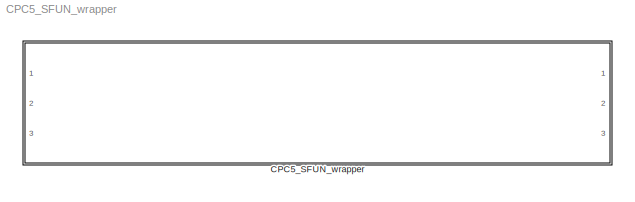
MODEL CPC5_SFUN_wrapper
KIND library
CONFIG PreLoadFcn = CPC5_SFUN_PreLoadFcn\nCPC5_SFUN_InitFcn
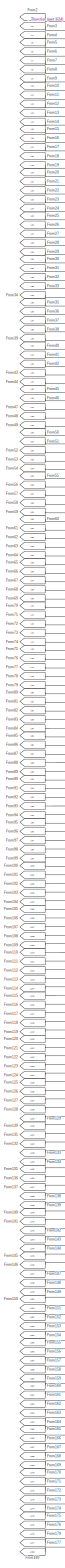
[diagram: CPC5_SFUN_wrapper - part 1/24, top left region]
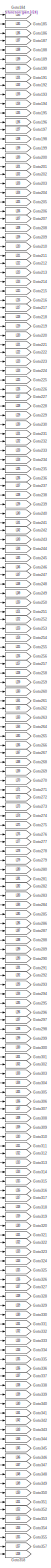
[diagram: CPC5_SFUN_wrapper - part 2/24, top center region]
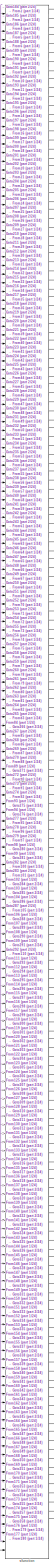
[diagram: CPC5_SFUN_wrapper - part 3/24, top left region]
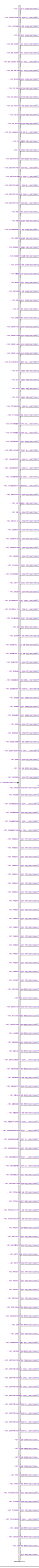
[diagram: CPC5_SFUN_wrapper - part 4/24, top right region]
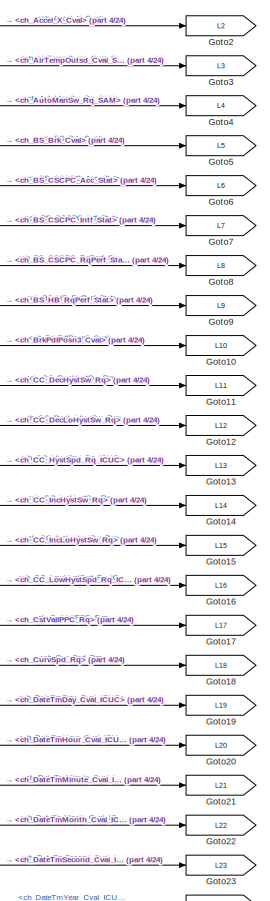
[diagram: CPC5_SFUN_wrapper - part 5/24, top right region]
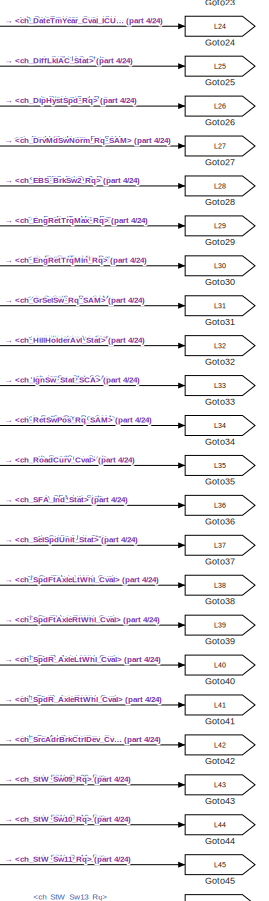
[diagram: CPC5_SFUN_wrapper - part 6/24, top right region]
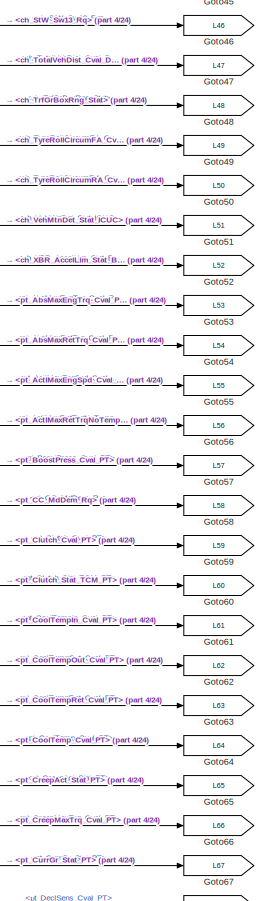
[diagram: CPC5_SFUN_wrapper - part 7/24, top right region]
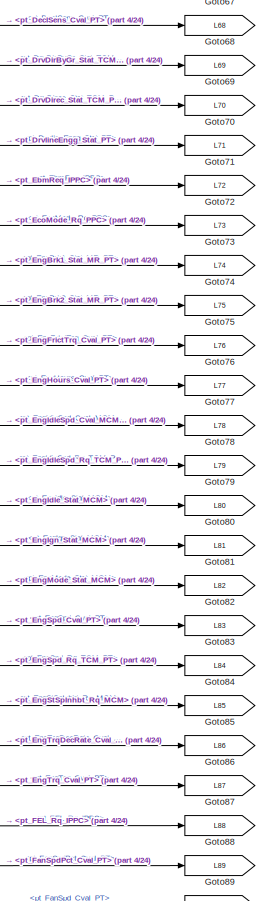
[diagram: CPC5_SFUN_wrapper - part 8/24, top right region]
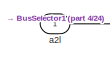
[diagram: CPC5_SFUN_wrapper - part 9/24, top center region]
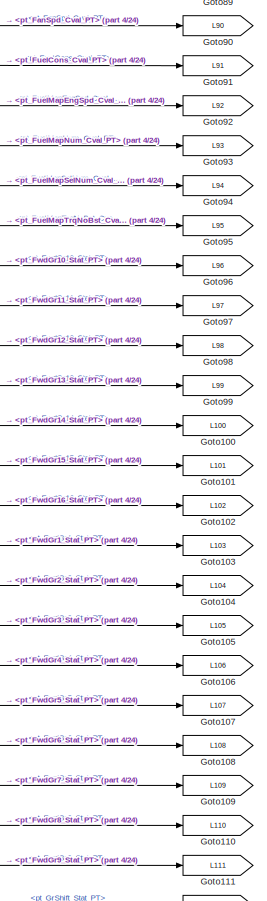
[diagram: CPC5_SFUN_wrapper - part 10/24, top right region]
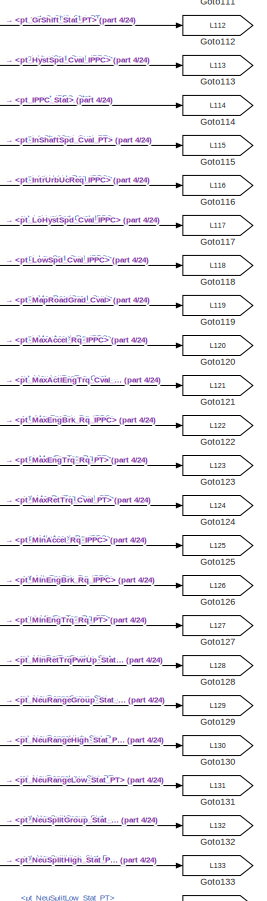
[diagram: CPC5_SFUN_wrapper - part 11/24, middle right region]
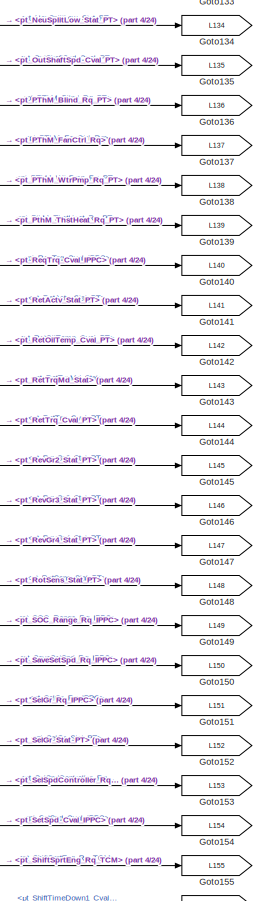
[diagram: CPC5_SFUN_wrapper - part 12/24, middle right region]
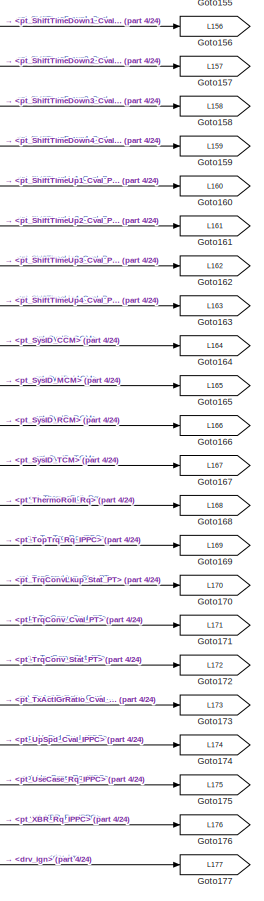
[diagram: CPC5_SFUN_wrapper - part 13/24, middle right region]
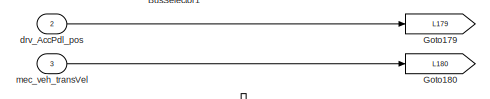
[diagram: CPC5_SFUN_wrapper - part 14/24, middle right region]
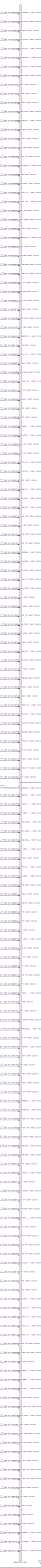
[diagram: CPC5_SFUN_wrapper - part 15/24, bottom right region]
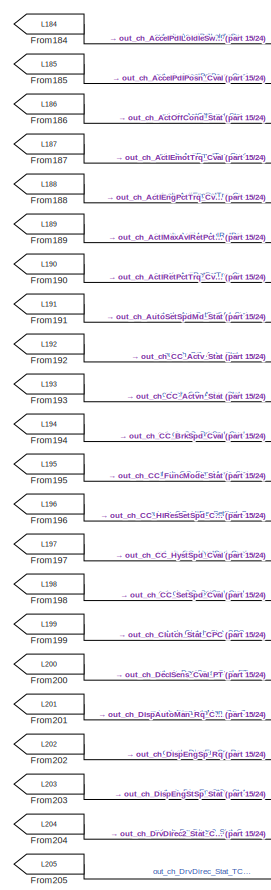
[diagram: CPC5_SFUN_wrapper - part 16/24, central region]
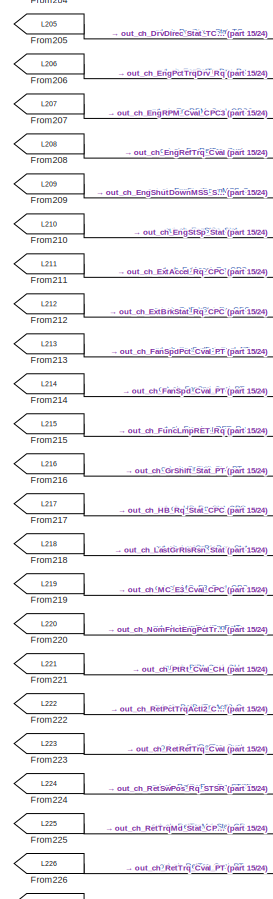
[diagram: CPC5_SFUN_wrapper - part 17/24, central region]
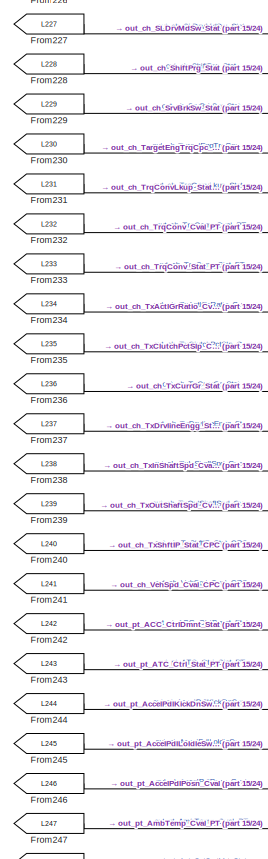
[diagram: CPC5_SFUN_wrapper - part 18/24, central region]
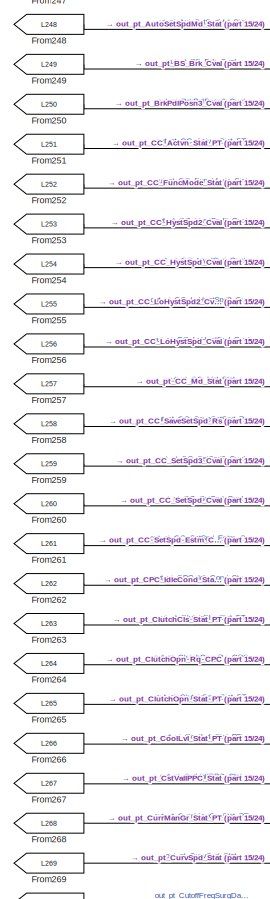
[diagram: CPC5_SFUN_wrapper - part 19/24, bottom center region]
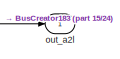
[diagram: CPC5_SFUN_wrapper - part 20/24, bottom right region]
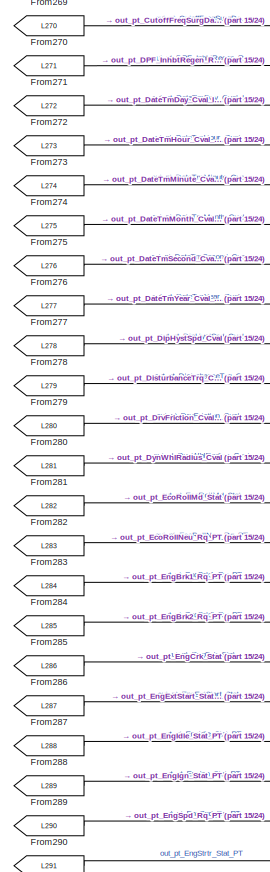
[diagram: CPC5_SFUN_wrapper - part 21/24, bottom center region]
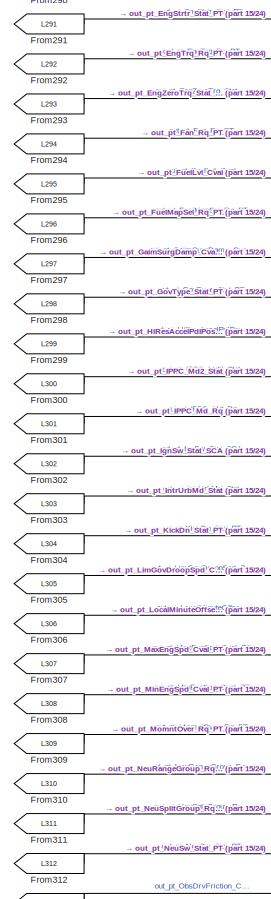
[diagram: CPC5_SFUN_wrapper - part 22/24, bottom center region]
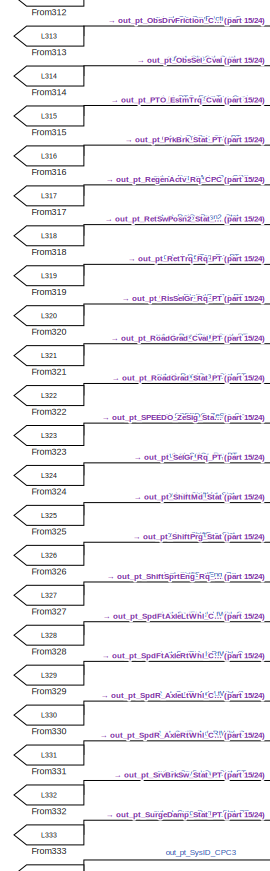
[diagram: CPC5_SFUN_wrapper - part 23/24, bottom center region]
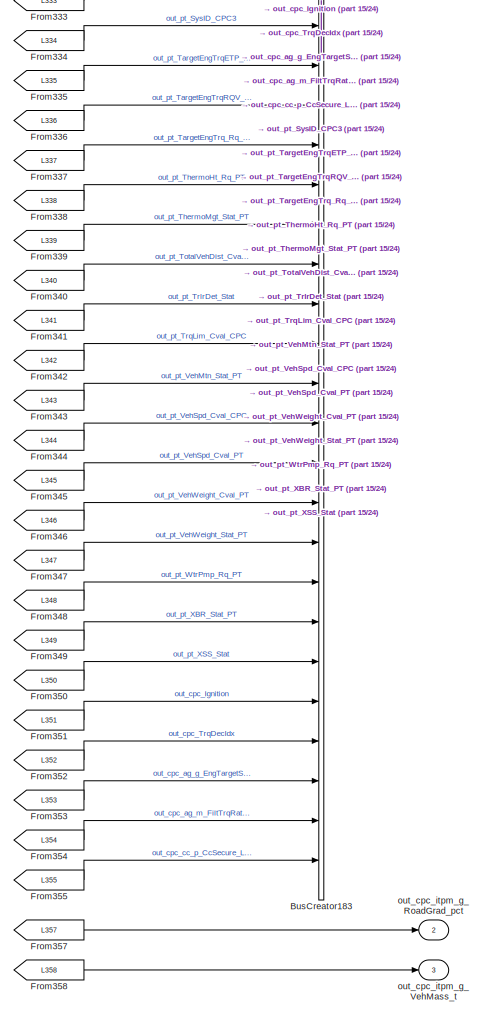
[diagram: CPC5_SFUN_wrapper - part 24/24, bottom right region]
BLOCK [SubSystem] CPC5_SFUN_wrapper
  Ports = [3, 3]
  RequestExecContextInheritance = off
  SID = 1
  Variant = off
BLOCK [BusCreator] CPC5_SFUN_wrapper/BusCreator183
  DisplayOption = bar
  InheritFromInputs = on
  Inputs = 172
  Ports = [172, 1]
  SID = 536
BLOCK [BusSelector] CPC5_SFUN_wrapper/BusSelector1
  OutputSignals = ch_Accel_X_Cval,ch_AirTempOutsd_Cval_SCA,ch_AutoManSw_Rq_SAM,ch_BS_Brk_Cval,ch_BS_CSCPC_Acc_Stat,ch_BS_CSCPC_Intf_Stat,ch_BS_CSCPC_RqPerf_Stat,ch_BS_HB_RqPerf_Stat,ch_BrkPdlPosn3_Cval,ch_CC_DecHystSw_Rq,ch_CC_DecLoHystSw_Rq,ch_CC_HystSpd_Rq_ICUC,ch_CC_IncHystSw_Rq,ch_CC_IncLoHystSw_Rq,ch_CC_LowHystSpd_Rq_ICUC,ch_CstValIPPC_Rq,ch_CurvSpd_Rq,ch_DateTmDay_Cval_ICUC,ch_DateTmHour_Cval_ICUC,ch_DateTmMi...<+3221ch>
  Ports = [1, 176]
  SID = 180
BLOCK [From] CPC5_SFUN_wrapper/From10
  GotoTag = L10
  SID = 11
BLOCK [From] CPC5_SFUN_wrapper/From100
  GotoTag = L100
  SID = 101
BLOCK [From] CPC5_SFUN_wrapper/From101
  GotoTag = L101
  SID = 102
BLOCK [From] CPC5_SFUN_wrapper/From102
  GotoTag = L102
  SID = 103
BLOCK [From] CPC5_SFUN_wrapper/From103
  GotoTag = L103
  SID = 104
BLOCK [From] CPC5_SFUN_wrapper/From104
  GotoTag = L104
  SID = 105
BLOCK [From] CPC5_SFUN_wrapper/From105
  GotoTag = L105
  SID = 106
BLOCK [From] CPC5_SFUN_wrapper/From106
  GotoTag = L106
  SID = 107
BLOCK [From] CPC5_SFUN_wrapper/From107
  GotoTag = L107
  SID = 108
BLOCK [From] CPC5_SFUN_wrapper/From108
  GotoTag = L108
  SID = 109
BLOCK [From] CPC5_SFUN_wrapper/From109
  GotoTag = L109
  SID = 110
BLOCK [From] CPC5_SFUN_wrapper/From11
  GotoTag = L11
  SID = 12
BLOCK [From] CPC5_SFUN_wrapper/From110
  GotoTag = L110
  SID = 111
BLOCK [From] CPC5_SFUN_wrapper/From111
  GotoTag = L111
  SID = 112
BLOCK [From] CPC5_SFUN_wrapper/From112
  GotoTag = L112
  SID = 113
BLOCK [From] CPC5_SFUN_wrapper/From113
  GotoTag = L113
  SID = 114
BLOCK [From] CPC5_SFUN_wrapper/From114
  GotoTag = L114
  SID = 115
BLOCK [From] CPC5_SFUN_wrapper/From115
  GotoTag = L115
  SID = 116
BLOCK [From] CPC5_SFUN_wrapper/From116
  GotoTag = L116
  SID = 117
BLOCK [From] CPC5_SFUN_wrapper/From117
  GotoTag = L117
  SID = 118
BLOCK [From] CPC5_SFUN_wrapper/From118
  GotoTag = L118
  SID = 119
BLOCK [From] CPC5_SFUN_wrapper/From119
  GotoTag = L119
  SID = 120
BLOCK [From] CPC5_SFUN_wrapper/From12
  GotoTag = L12
  SID = 13
BLOCK [From] CPC5_SFUN_wrapper/From120
  GotoTag = L120
  SID = 121
BLOCK [From] CPC5_SFUN_wrapper/From121
  GotoTag = L121
  SID = 122
BLOCK [From] CPC5_SFUN_wrapper/From122
  GotoTag = L122
  SID = 123
BLOCK [From] CPC5_SFUN_wrapper/From123
  GotoTag = L123
  SID = 124
BLOCK [From] CPC5_SFUN_wrapper/From124
  GotoTag = L124
  SID = 125
BLOCK [From] CPC5_SFUN_wrapper/From125
  GotoTag = L125
  SID = 126
BLOCK [From] CPC5_SFUN_wrapper/From126
  GotoTag = L126
  SID = 127
BLOCK [From] CPC5_SFUN_wrapper/From127
  GotoTag = L127
  SID = 128
BLOCK [From] CPC5_SFUN_wrapper/From128
  GotoTag = L128
  SID = 129
BLOCK [From] CPC5_SFUN_wrapper/From129
  GotoTag = L129
  SID = 130
BLOCK [From] CPC5_SFUN_wrapper/From13
  GotoTag = L13
  SID = 14
BLOCK [From] CPC5_SFUN_wrapper/From130
  GotoTag = L130
  SID = 131
BLOCK [From] CPC5_SFUN_wrapper/From131
  GotoTag = L131
  SID = 132
BLOCK [From] CPC5_SFUN_wrapper/From132
  GotoTag = L132
  SID = 133
BLOCK [From] CPC5_SFUN_wrapper/From133
  GotoTag = L133
  SID = 134
BLOCK [From] CPC5_SFUN_wrapper/From134
  GotoTag = L134
  SID = 135
BLOCK [From] CPC5_SFUN_wrapper/From135
  GotoTag = L135
  SID = 136
BLOCK [From] CPC5_SFUN_wrapper/From136
  GotoTag = L136
  SID = 137
BLOCK [From] CPC5_SFUN_wrapper/From137
  GotoTag = L137
  SID = 138
BLOCK [From] CPC5_SFUN_wrapper/From138
  GotoTag = L138
  SID = 139
BLOCK [From] CPC5_SFUN_wrapper/From139
  GotoTag = L139
  SID = 140
BLOCK [From] CPC5_SFUN_wrapper/From14
  GotoTag = L14
  SID = 15
BLOCK [From] CPC5_SFUN_wrapper/From140
  GotoTag = L140
  SID = 141
BLOCK [From] CPC5_SFUN_wrapper/From141
  GotoTag = L141
  SID = 142
BLOCK [From] CPC5_SFUN_wrapper/From142
  GotoTag = L142
  SID = 143
BLOCK [From] CPC5_SFUN_wrapper/From143
  GotoTag = L143
  SID = 144
BLOCK [From] CPC5_SFUN_wrapper/From144
  GotoTag = L144
  SID = 145
BLOCK [From] CPC5_SFUN_wrapper/From145
  GotoTag = L145
  SID = 146
BLOCK [From] CPC5_SFUN_wrapper/From146
  GotoTag = L146
  SID = 147
BLOCK [From] CPC5_SFUN_wrapper/From147
  GotoTag = L147
  SID = 148
BLOCK [From] CPC5_SFUN_wrapper/From148
  GotoTag = L148
  SID = 149
BLOCK [From] CPC5_SFUN_wrapper/From149
  GotoTag = L149
  SID = 150
BLOCK [From] CPC5_SFUN_wrapper/From15
  GotoTag = L15
  SID = 16
BLOCK [From] CPC5_SFUN_wrapper/From150
  GotoTag = L150
  SID = 151
BLOCK [From] CPC5_SFUN_wrapper/From151
  GotoTag = L151
  SID = 152
BLOCK [From] CPC5_SFUN_wrapper/From152
  GotoTag = L152
  SID = 153
BLOCK [From] CPC5_SFUN_wrapper/From153
  GotoTag = L153
  SID = 154
BLOCK [From] CPC5_SFUN_wrapper/From154
  GotoTag = L154
  SID = 155
BLOCK [From] CPC5_SFUN_wrapper/From155
  GotoTag = L155
  SID = 156
BLOCK [From] CPC5_SFUN_wrapper/From156
  GotoTag = L156
  SID = 157
BLOCK [From] CPC5_SFUN_wrapper/From157
  GotoTag = L157
  SID = 158
BLOCK [From] CPC5_SFUN_wrapper/From158
  GotoTag = L158
  SID = 159
BLOCK [From] CPC5_SFUN_wrapper/From159
  GotoTag = L159
  SID = 160
BLOCK [From] CPC5_SFUN_wrapper/From16
  GotoTag = L16
  SID = 17
BLOCK [From] CPC5_SFUN_wrapper/From160
  GotoTag = L160
  SID = 161
BLOCK [From] CPC5_SFUN_wrapper/From161
  GotoTag = L161
  SID = 162
BLOCK [From] CPC5_SFUN_wrapper/From162
  GotoTag = L162
  SID = 163
BLOCK [From] CPC5_SFUN_wrapper/From163
  GotoTag = L163
  SID = 164
BLOCK [From] CPC5_SFUN_wrapper/From164
  GotoTag = L164
  SID = 165
BLOCK [From] CPC5_SFUN_wrapper/From165
  GotoTag = L165
  SID = 166
BLOCK [From] CPC5_SFUN_wrapper/From166
  GotoTag = L166
  SID = 167
BLOCK [From] CPC5_SFUN_wrapper/From167
  GotoTag = L167
  SID = 168
BLOCK [From] CPC5_SFUN_wrapper/From168
  GotoTag = L168
  SID = 169
BLOCK [From] CPC5_SFUN_wrapper/From169
  GotoTag = L169
  SID = 170
BLOCK [From] CPC5_SFUN_wrapper/From17
  GotoTag = L17
  SID = 18
BLOCK [From] CPC5_SFUN_wrapper/From170
  GotoTag = L170
  SID = 171
BLOCK [From] CPC5_SFUN_wrapper/From171
  GotoTag = L171
  SID = 172
BLOCK [From] CPC5_SFUN_wrapper/From172
  GotoTag = L172
  SID = 173
BLOCK [From] CPC5_SFUN_wrapper/From173
  GotoTag = L173
  SID = 174
BLOCK [From] CPC5_SFUN_wrapper/From174
  GotoTag = L174
  SID = 175
BLOCK [From] CPC5_SFUN_wrapper/From175
  GotoTag = L175
  SID = 176
BLOCK [From] CPC5_SFUN_wrapper/From176
  GotoTag = L176
  SID = 177
BLOCK [From] CPC5_SFUN_wrapper/From177
  GotoTag = L177
  SID = 178
BLOCK [From] CPC5_SFUN_wrapper/From179
  GotoTag = L179
  SID = 359
BLOCK [From] CPC5_SFUN_wrapper/From18
  GotoTag = L18
  SID = 19
BLOCK [From] CPC5_SFUN_wrapper/From180
  GotoTag = L180
  SID = 362
BLOCK [From] CPC5_SFUN_wrapper/From184
  GotoTag = L184
  SID = 537
BLOCK [From] CPC5_SFUN_wrapper/From185
  GotoTag = L185
  SID = 538
BLOCK [From] CPC5_SFUN_wrapper/From186
  GotoTag = L186
  SID = 539
BLOCK [From] CPC5_SFUN_wrapper/From187
  GotoTag = L187
  SID = 540
BLOCK [From] CPC5_SFUN_wrapper/From188
  GotoTag = L188
  SID = 541
BLOCK [From] CPC5_SFUN_wrapper/From189
  GotoTag = L189
  SID = 542
BLOCK [From] CPC5_SFUN_wrapper/From19
  GotoTag = L19
  SID = 20
BLOCK [From] CPC5_SFUN_wrapper/From190
  GotoTag = L190
  SID = 543
BLOCK [From] CPC5_SFUN_wrapper/From191
  GotoTag = L191
  SID = 544
BLOCK [From] CPC5_SFUN_wrapper/From192
  GotoTag = L192
  SID = 545
BLOCK [From] CPC5_SFUN_wrapper/From193
  GotoTag = L193
  SID = 546
BLOCK [From] CPC5_SFUN_wrapper/From194
  GotoTag = L194
  SID = 547
BLOCK [From] CPC5_SFUN_wrapper/From195
  GotoTag = L195
  SID = 548
BLOCK [From] CPC5_SFUN_wrapper/From196
  GotoTag = L196
  SID = 549
BLOCK [From] CPC5_SFUN_wrapper/From197
  GotoTag = L197
  SID = 550
BLOCK [From] CPC5_SFUN_wrapper/From198
  GotoTag = L198
  SID = 551
BLOCK [From] CPC5_SFUN_wrapper/From199
  GotoTag = L199
  SID = 552
BLOCK [From] CPC5_SFUN_wrapper/From2
  GotoTag = L2
  SID = 3
BLOCK [From] CPC5_SFUN_wrapper/From20
  GotoTag = L20
  SID = 21
BLOCK [From] CPC5_SFUN_wrapper/From200
  GotoTag = L200
  SID = 553
BLOCK [From] CPC5_SFUN_wrapper/From201
  GotoTag = L201
  SID = 554
BLOCK [From] CPC5_SFUN_wrapper/From202
  GotoTag = L202
  SID = 555
BLOCK [From] CPC5_SFUN_wrapper/From203
  GotoTag = L203
  SID = 556
BLOCK [From] CPC5_SFUN_wrapper/From204
  GotoTag = L204
  SID = 557
BLOCK [From] CPC5_SFUN_wrapper/From205
  GotoTag = L205
  SID = 558
BLOCK [From] CPC5_SFUN_wrapper/From206
  GotoTag = L206
  SID = 559
BLOCK [From] CPC5_SFUN_wrapper/From207
  GotoTag = L207
  SID = 560
BLOCK [From] CPC5_SFUN_wrapper/From208
  GotoTag = L208
  SID = 561
BLOCK [From] CPC5_SFUN_wrapper/From209
  GotoTag = L209
  SID = 562
BLOCK [From] CPC5_SFUN_wrapper/From21
  GotoTag = L21
  SID = 22
BLOCK [From] CPC5_SFUN_wrapper/From210
  GotoTag = L210
  SID = 563
BLOCK [From] CPC5_SFUN_wrapper/From211
  GotoTag = L211
  SID = 564
BLOCK [From] CPC5_SFUN_wrapper/From212
  GotoTag = L212
  SID = 565
BLOCK [From] CPC5_SFUN_wrapper/From213
  GotoTag = L213
  SID = 566
BLOCK [From] CPC5_SFUN_wrapper/From214
  GotoTag = L214
  SID = 567
BLOCK [From] CPC5_SFUN_wrapper/From215
  GotoTag = L215
  SID = 568
BLOCK [From] CPC5_SFUN_wrapper/From216
  GotoTag = L216
  SID = 569
BLOCK [From] CPC5_SFUN_wrapper/From217
  GotoTag = L217
  SID = 570
BLOCK [From] CPC5_SFUN_wrapper/From218
  GotoTag = L218
  SID = 571
BLOCK [From] CPC5_SFUN_wrapper/From219
  GotoTag = L219
  SID = 572
BLOCK [From] CPC5_SFUN_wrapper/From22
  GotoTag = L22
  SID = 23
BLOCK [From] CPC5_SFUN_wrapper/From220
  GotoTag = L220
  SID = 573
BLOCK [From] CPC5_SFUN_wrapper/From221
  GotoTag = L221
  SID = 574
BLOCK [From] CPC5_SFUN_wrapper/From222
  GotoTag = L222
  SID = 575
BLOCK [From] CPC5_SFUN_wrapper/From223
  GotoTag = L223
  SID = 576
BLOCK [From] CPC5_SFUN_wrapper/From224
  GotoTag = L224
  SID = 577
BLOCK [From] CPC5_SFUN_wrapper/From225
  GotoTag = L225
  SID = 578
BLOCK [From] CPC5_SFUN_wrapper/From226
  GotoTag = L226
  SID = 579
BLOCK [From] CPC5_SFUN_wrapper/From227
  GotoTag = L227
  SID = 580
BLOCK [From] CPC5_SFUN_wrapper/From228
  GotoTag = L228
  SID = 581
BLOCK [From] CPC5_SFUN_wrapper/From229
  GotoTag = L229
  SID = 582
BLOCK [From] CPC5_SFUN_wrapper/From23
  GotoTag = L23
  SID = 24
BLOCK [From] CPC5_SFUN_wrapper/From230
  GotoTag = L230
  SID = 583
BLOCK [From] CPC5_SFUN_wrapper/From231
  GotoTag = L231
  SID = 584
BLOCK [From] CPC5_SFUN_wrapper/From232
  GotoTag = L232
  SID = 585
BLOCK [From] CPC5_SFUN_wrapper/From233
  GotoTag = L233
  SID = 586
BLOCK [From] CPC5_SFUN_wrapper/From234
  GotoTag = L234
  SID = 587
BLOCK [From] CPC5_SFUN_wrapper/From235
  GotoTag = L235
  SID = 588
BLOCK [From] CPC5_SFUN_wrapper/From236
  GotoTag = L236
  SID = 589
BLOCK [From] CPC5_SFUN_wrapper/From237
  GotoTag = L237
  SID = 590
BLOCK [From] CPC5_SFUN_wrapper/From238
  GotoTag = L238
  SID = 591
BLOCK [From] CPC5_SFUN_wrapper/From239
  GotoTag = L239
  SID = 592
BLOCK [From] CPC5_SFUN_wrapper/From24
  GotoTag = L24
  SID = 25
BLOCK [From] CPC5_SFUN_wrapper/From240
  GotoTag = L240
  SID = 593
BLOCK [From] CPC5_SFUN_wrapper/From241
  GotoTag = L241
  SID = 594
BLOCK [From] CPC5_SFUN_wrapper/From242
  GotoTag = L242
  SID = 595
BLOCK [From] CPC5_SFUN_wrapper/From243
  GotoTag = L243
  SID = 596
BLOCK [From] CPC5_SFUN_wrapper/From244
  GotoTag = L244
  SID = 597
BLOCK [From] CPC5_SFUN_wrapper/From245
  GotoTag = L245
  SID = 598
BLOCK [From] CPC5_SFUN_wrapper/From246
  GotoTag = L246
  SID = 599
BLOCK [From] CPC5_SFUN_wrapper/From247
  GotoTag = L247
  SID = 600
BLOCK [From] CPC5_SFUN_wrapper/From248
  GotoTag = L248
  SID = 601
BLOCK [From] CPC5_SFUN_wrapper/From249
  GotoTag = L249
  SID = 602
BLOCK [From] CPC5_SFUN_wrapper/From25
  GotoTag = L25
  SID = 26
BLOCK [From] CPC5_SFUN_wrapper/From250
  GotoTag = L250
  SID = 603
BLOCK [From] CPC5_SFUN_wrapper/From251
  GotoTag = L251
  SID = 604
BLOCK [From] CPC5_SFUN_wrapper/From252
  GotoTag = L252
  SID = 605
BLOCK [From] CPC5_SFUN_wrapper/From253
  GotoTag = L253
  SID = 606
BLOCK [From] CPC5_SFUN_wrapper/From254
  GotoTag = L254
  SID = 607
BLOCK [From] CPC5_SFUN_wrapper/From255
  GotoTag = L255
  SID = 608
BLOCK [From] CPC5_SFUN_wrapper/From256
  GotoTag = L256
  SID = 609
BLOCK [From] CPC5_SFUN_wrapper/From257
  GotoTag = L257
  SID = 610
BLOCK [From] CPC5_SFUN_wrapper/From258
  GotoTag = L258
  SID = 611
BLOCK [From] CPC5_SFUN_wrapper/From259
  GotoTag = L259
  SID = 612
BLOCK [From] CPC5_SFUN_wrapper/From26
  GotoTag = L26
  SID = 27
BLOCK [From] CPC5_SFUN_wrapper/From260
  GotoTag = L260
  SID = 613
BLOCK [From] CPC5_SFUN_wrapper/From261
  GotoTag = L261
  SID = 614
BLOCK [From] CPC5_SFUN_wrapper/From262
  GotoTag = L262
  SID = 615
BLOCK [From] CPC5_SFUN_wrapper/From263
  GotoTag = L263
  SID = 616
BLOCK [From] CPC5_SFUN_wrapper/From264
  GotoTag = L264
  SID = 617
BLOCK [From] CPC5_SFUN_wrapper/From265
  GotoTag = L265
  SID = 618
BLOCK [From] CPC5_SFUN_wrapper/From266
  GotoTag = L266
  SID = 619
BLOCK [From] CPC5_SFUN_wrapper/From267
  GotoTag = L267
  SID = 620
BLOCK [From] CPC5_SFUN_wrapper/From268
  GotoTag = L268
  SID = 621
BLOCK [From] CPC5_SFUN_wrapper/From269
  GotoTag = L269
  SID = 622
BLOCK [From] CPC5_SFUN_wrapper/From27
  GotoTag = L27
  SID = 28
BLOCK [From] CPC5_SFUN_wrapper/From270
  GotoTag = L270
  SID = 623
BLOCK [From] CPC5_SFUN_wrapper/From271
  GotoTag = L271
  SID = 624
BLOCK [From] CPC5_SFUN_wrapper/From272
  GotoTag = L272
  SID = 625
BLOCK [From] CPC5_SFUN_wrapper/From273
  GotoTag = L273
  SID = 626
BLOCK [From] CPC5_SFUN_wrapper/From274
  GotoTag = L274
  SID = 627
BLOCK [From] CPC5_SFUN_wrapper/From275
  GotoTag = L275
  SID = 628
BLOCK [From] CPC5_SFUN_wrapper/From276
  GotoTag = L276
  SID = 629
BLOCK [From] CPC5_SFUN_wrapper/From277
  GotoTag = L277
  SID = 630
BLOCK [From] CPC5_SFUN_wrapper/From278
  GotoTag = L278
  SID = 631
BLOCK [From] CPC5_SFUN_wrapper/From279
  GotoTag = L279
  SID = 632
BLOCK [From] CPC5_SFUN_wrapper/From28
  GotoTag = L28
  SID = 29
BLOCK [From] CPC5_SFUN_wrapper/From280
  GotoTag = L280
  SID = 633
BLOCK [From] CPC5_SFUN_wrapper/From281
  GotoTag = L281
  SID = 634
BLOCK [From] CPC5_SFUN_wrapper/From282
  GotoTag = L282
  SID = 635
BLOCK [From] CPC5_SFUN_wrapper/From283
  GotoTag = L283
  SID = 636
BLOCK [From] CPC5_SFUN_wrapper/From284
  GotoTag = L284
  SID = 637
BLOCK [From] CPC5_SFUN_wrapper/From285
  GotoTag = L285
  SID = 638
BLOCK [From] CPC5_SFUN_wrapper/From286
  GotoTag = L286
  SID = 639
BLOCK [From] CPC5_SFUN_wrapper/From287
  GotoTag = L287
  SID = 640
BLOCK [From] CPC5_SFUN_wrapper/From288
  GotoTag = L288
  SID = 641
BLOCK [From] CPC5_SFUN_wrapper/From289
  GotoTag = L289
  SID = 642
BLOCK [From] CPC5_SFUN_wrapper/From29
  GotoTag = L29
  SID = 30
BLOCK [From] CPC5_SFUN_wrapper/From290
  GotoTag = L290
  SID = 643
BLOCK [From] CPC5_SFUN_wrapper/From291
  GotoTag = L291
  SID = 644
BLOCK [From] CPC5_SFUN_wrapper/From292
  GotoTag = L292
  SID = 645
BLOCK [From] CPC5_SFUN_wrapper/From293
  GotoTag = L293
  SID = 646
BLOCK [From] CPC5_SFUN_wrapper/From294
  GotoTag = L294
  SID = 647
BLOCK [From] CPC5_SFUN_wrapper/From295
  GotoTag = L295
  SID = 648
BLOCK [From] CPC5_SFUN_wrapper/From296
  GotoTag = L296
  SID = 649
BLOCK [From] CPC5_SFUN_wrapper/From297
  GotoTag = L297
  SID = 650
BLOCK [From] CPC5_SFUN_wrapper/From298
  GotoTag = L298
  SID = 651
BLOCK [From] CPC5_SFUN_wrapper/From299
  GotoTag = L299
  SID = 652
BLOCK [From] CPC5_SFUN_wrapper/From3
  GotoTag = L3
  SID = 4
BLOCK [From] CPC5_SFUN_wrapper/From30
  GotoTag = L30
  SID = 31
BLOCK [From] CPC5_SFUN_wrapper/From300
  GotoTag = L300
  SID = 653
BLOCK [From] CPC5_SFUN_wrapper/From301
  GotoTag = L301
  SID = 654
BLOCK [From] CPC5_SFUN_wrapper/From302
  GotoTag = L302
  SID = 655
BLOCK [From] CPC5_SFUN_wrapper/From303
  GotoTag = L303
  SID = 656
BLOCK [From] CPC5_SFUN_wrapper/From304
  GotoTag = L304
  SID = 657
BLOCK [From] CPC5_SFUN_wrapper/From305
  GotoTag = L305
  SID = 658
BLOCK [From] CPC5_SFUN_wrapper/From306
  GotoTag = L306
  SID = 659
BLOCK [From] CPC5_SFUN_wrapper/From307
  GotoTag = L307
  SID = 660
BLOCK [From] CPC5_SFUN_wrapper/From308
  GotoTag = L308
  SID = 661
BLOCK [From] CPC5_SFUN_wrapper/From309
  GotoTag = L309
  SID = 662
BLOCK [From] CPC5_SFUN_wrapper/From31
  GotoTag = L31
  SID = 32
BLOCK [From] CPC5_SFUN_wrapper/From310
  GotoTag = L310
  SID = 663
BLOCK [From] CPC5_SFUN_wrapper/From311
  GotoTag = L311
  SID = 664
BLOCK [From] CPC5_SFUN_wrapper/From312
  GotoTag = L312
  SID = 665
BLOCK [From] CPC5_SFUN_wrapper/From313
  GotoTag = L313
  SID = 666
BLOCK [From] CPC5_SFUN_wrapper/From314
  GotoTag = L314
  SID = 667
BLOCK [From] CPC5_SFUN_wrapper/From315
  GotoTag = L315
  SID = 668
BLOCK [From] CPC5_SFUN_wrapper/From316
  GotoTag = L316
  SID = 669
BLOCK [From] CPC5_SFUN_wrapper/From317
  GotoTag = L317
  SID = 670
BLOCK [From] CPC5_SFUN_wrapper/From318
  GotoTag = L318
  SID = 671
BLOCK [From] CPC5_SFUN_wrapper/From319
  GotoTag = L319
  SID = 672
BLOCK [From] CPC5_SFUN_wrapper/From32
  GotoTag = L32
  SID = 33
BLOCK [From] CPC5_SFUN_wrapper/From320
  GotoTag = L320
  SID = 673
BLOCK [From] CPC5_SFUN_wrapper/From321
  GotoTag = L321
  SID = 674
BLOCK [From] CPC5_SFUN_wrapper/From322
  GotoTag = L322
  SID = 675
BLOCK [From] CPC5_SFUN_wrapper/From323
  GotoTag = L323
  SID = 676
BLOCK [From] CPC5_SFUN_wrapper/From324
  GotoTag = L324
  SID = 677
BLOCK [From] CPC5_SFUN_wrapper/From325
  GotoTag = L325
  SID = 678
BLOCK [From] CPC5_SFUN_wrapper/From326
  GotoTag = L326
  SID = 679
BLOCK [From] CPC5_SFUN_wrapper/From327
  GotoTag = L327
  SID = 680
BLOCK [From] CPC5_SFUN_wrapper/From328
  GotoTag = L328
  SID = 681
BLOCK [From] CPC5_SFUN_wrapper/From329
  GotoTag = L329
  SID = 682
BLOCK [From] CPC5_SFUN_wrapper/From33
  GotoTag = L33
  SID = 34
BLOCK [From] CPC5_SFUN_wrapper/From330
  GotoTag = L330
  SID = 683
BLOCK [From] CPC5_SFUN_wrapper/From331
  GotoTag = L331
  SID = 684
BLOCK [From] CPC5_SFUN_wrapper/From332
  GotoTag = L332
  SID = 685
BLOCK [From] CPC5_SFUN_wrapper/From333
  GotoTag = L333
  SID = 686
BLOCK [From] CPC5_SFUN_wrapper/From334
  GotoTag = L334
  SID = 687
BLOCK [From] CPC5_SFUN_wrapper/From335
  GotoTag = L335
  SID = 688
BLOCK [From] CPC5_SFUN_wrapper/From336
  GotoTag = L336
  SID = 689
BLOCK [From] CPC5_SFUN_wrapper/From337
  GotoTag = L337
  SID = 690
BLOCK [From] CPC5_SFUN_wrapper/From338
  GotoTag = L338
  SID = 691
BLOCK [From] CPC5_SFUN_wrapper/From339
  GotoTag = L339
  SID = 692
BLOCK [From] CPC5_SFUN_wrapper/From34
  GotoTag = L34
  SID = 35
BLOCK [From] CPC5_SFUN_wrapper/From340
  GotoTag = L340
  SID = 693
BLOCK [From] CPC5_SFUN_wrapper/From341
  GotoTag = L341
  SID = 694
BLOCK [From] CPC5_SFUN_wrapper/From342
  GotoTag = L342
  SID = 695
BLOCK [From] CPC5_SFUN_wrapper/From343
  GotoTag = L343
  SID = 696
BLOCK [From] CPC5_SFUN_wrapper/From344
  GotoTag = L344
  SID = 697
BLOCK [From] CPC5_SFUN_wrapper/From345
  GotoTag = L345
  SID = 698
BLOCK [From] CPC5_SFUN_wrapper/From346
  GotoTag = L346
  SID = 699
BLOCK [From] CPC5_SFUN_wrapper/From347
  GotoTag = L347
  SID = 700
BLOCK [From] CPC5_SFUN_wrapper/From348
  GotoTag = L348
  SID = 701
BLOCK [From] CPC5_SFUN_wrapper/From349
  GotoTag = L349
  SID = 702
BLOCK [From] CPC5_SFUN_wrapper/From35
  GotoTag = L35
  SID = 36
BLOCK [From] CPC5_SFUN_wrapper/From350
  GotoTag = L350
  SID = 703
BLOCK [From] CPC5_SFUN_wrapper/From351
  GotoTag = L351
  SID = 704
BLOCK [From] CPC5_SFUN_wrapper/From352
  GotoTag = L352
  SID = 705
BLOCK [From] CPC5_SFUN_wrapper/From353
  GotoTag = L353
  SID = 706
BLOCK [From] CPC5_SFUN_wrapper/From354
  GotoTag = L354
  SID = 707
BLOCK [From] CPC5_SFUN_wrapper/From355
  GotoTag = L355
  SID = 708
BLOCK [From] CPC5_SFUN_wrapper/From357
  GotoTag = L357
  SID = 710
BLOCK [From] CPC5_SFUN_wrapper/From358
  GotoTag = L358
  SID = 713
BLOCK [From] CPC5_SFUN_wrapper/From36
  GotoTag = L36
  SID = 37
BLOCK [From] CPC5_SFUN_wrapper/From37
  GotoTag = L37
  SID = 38
BLOCK [From] CPC5_SFUN_wrapper/From38
  GotoTag = L38
  SID = 39
BLOCK [From] CPC5_SFUN_wrapper/From39
  GotoTag = L39
  SID = 40
BLOCK [From] CPC5_SFUN_wrapper/From4
  GotoTag = L4
  SID = 5
BLOCK [From] CPC5_SFUN_wrapper/From40
  GotoTag = L40
  SID = 41
BLOCK [From] CPC5_SFUN_wrapper/From41
  GotoTag = L41
  SID = 42
BLOCK [From] CPC5_SFUN_wrapper/From42
  GotoTag = L42
  SID = 43
BLOCK [From] CPC5_SFUN_wrapper/From43
  GotoTag = L43
  SID = 44
BLOCK [From] CPC5_SFUN_wrapper/From44
  GotoTag = L44
  SID = 45
BLOCK [From] CPC5_SFUN_wrapper/From45
  GotoTag = L45
  SID = 46
BLOCK [From] CPC5_SFUN_wrapper/From46
  GotoTag = L46
  SID = 47
BLOCK [From] CPC5_SFUN_wrapper/From47
  GotoTag = L47
  SID = 48
BLOCK [From] CPC5_SFUN_wrapper/From48
  GotoTag = L48
  SID = 49
BLOCK [From] CPC5_SFUN_wrapper/From49
  GotoTag = L49
  SID = 50
BLOCK [From] CPC5_SFUN_wrapper/From5
  GotoTag = L5
  SID = 6
BLOCK [From] CPC5_SFUN_wrapper/From50
  GotoTag = L50
  SID = 51
BLOCK [From] CPC5_SFUN_wrapper/From51
  GotoTag = L51
  SID = 52
BLOCK [From] CPC5_SFUN_wrapper/From52
  GotoTag = L52
  SID = 53
BLOCK [From] CPC5_SFUN_wrapper/From53
  GotoTag = L53
  SID = 54
BLOCK [From] CPC5_SFUN_wrapper/From54
  GotoTag = L54
  SID = 55
BLOCK [From] CPC5_SFUN_wrapper/From55
  GotoTag = L55
  SID = 56
BLOCK [From] CPC5_SFUN_wrapper/From56
  GotoTag = L56
  SID = 57
BLOCK [From] CPC5_SFUN_wrapper/From57
  GotoTag = L57
  SID = 58
BLOCK [From] CPC5_SFUN_wrapper/From58
  GotoTag = L58
  SID = 59
BLOCK [From] CPC5_SFUN_wrapper/From59
  GotoTag = L59
  SID = 60
BLOCK [From] CPC5_SFUN_wrapper/From6
  GotoTag = L6
  SID = 7
BLOCK [From] CPC5_SFUN_wrapper/From60
  GotoTag = L60
  SID = 61
BLOCK [From] CPC5_SFUN_wrapper/From61
  GotoTag = L61
  SID = 62
BLOCK [From] CPC5_SFUN_wrapper/From62
  GotoTag = L62
  SID = 63
BLOCK [From] CPC5_SFUN_wrapper/From63
  GotoTag = L63
  SID = 64
BLOCK [From] CPC5_SFUN_wrapper/From64
  GotoTag = L64
  SID = 65
BLOCK [From] CPC5_SFUN_wrapper/From65
  GotoTag = L65
  SID = 66
BLOCK [From] CPC5_SFUN_wrapper/From66
  GotoTag = L66
  SID = 67
BLOCK [From] CPC5_SFUN_wrapper/From67
  GotoTag = L67
  SID = 68
BLOCK [From] CPC5_SFUN_wrapper/From68
  GotoTag = L68
  SID = 69
BLOCK [From] CPC5_SFUN_wrapper/From69
  GotoTag = L69
  SID = 70
BLOCK [From] CPC5_SFUN_wrapper/From7
  GotoTag = L7
  SID = 8
BLOCK [From] CPC5_SFUN_wrapper/From70
  GotoTag = L70
  SID = 71
BLOCK [From] CPC5_SFUN_wrapper/From71
  GotoTag = L71
  SID = 72
BLOCK [From] CPC5_SFUN_wrapper/From72
  GotoTag = L72
  SID = 73
BLOCK [From] CPC5_SFUN_wrapper/From73
  GotoTag = L73
  SID = 74
BLOCK [From] CPC5_SFUN_wrapper/From74
  GotoTag = L74
  SID = 75
BLOCK [From] CPC5_SFUN_wrapper/From75
  GotoTag = L75
  SID = 76
BLOCK [From] CPC5_SFUN_wrapper/From76
  GotoTag = L76
  SID = 77
BLOCK [From] CPC5_SFUN_wrapper/From77
  GotoTag = L77
  SID = 78
BLOCK [From] CPC5_SFUN_wrapper/From78
  GotoTag = L78
  SID = 79
BLOCK [From] CPC5_SFUN_wrapper/From79
  GotoTag = L79
  SID = 80
BLOCK [From] CPC5_SFUN_wrapper/From8
  GotoTag = L8
  SID = 9
BLOCK [From] CPC5_SFUN_wrapper/From80
  GotoTag = L80
  SID = 81
BLOCK [From] CPC5_SFUN_wrapper/From81
  GotoTag = L81
  SID = 82
BLOCK [From] CPC5_SFUN_wrapper/From82
  GotoTag = L82
  SID = 83
BLOCK [From] CPC5_SFUN_wrapper/From83
  GotoTag = L83
  SID = 84
BLOCK [From] CPC5_SFUN_wrapper/From84
  GotoTag = L84
  SID = 85
BLOCK [From] CPC5_SFUN_wrapper/From85
  GotoTag = L85
  SID = 86
BLOCK [From] CPC5_SFUN_wrapper/From86
  GotoTag = L86
  SID = 87
BLOCK [From] CPC5_SFUN_wrapper/From87
  GotoTag = L87
  SID = 88
BLOCK [From] CPC5_SFUN_wrapper/From88
  GotoTag = L88
  SID = 89
BLOCK [From] CPC5_SFUN_wrapper/From89
  GotoTag = L89
  SID = 90
BLOCK [From] CPC5_SFUN_wrapper/From9
  GotoTag = L9
  SID = 10
BLOCK [From] CPC5_SFUN_wrapper/From90
  GotoTag = L90
  SID = 91
BLOCK [From] CPC5_SFUN_wrapper/From91
  GotoTag = L91
  SID = 92
BLOCK [From] CPC5_SFUN_wrapper/From92
  GotoTag = L92
  SID = 93
BLOCK [From] CPC5_SFUN_wrapper/From93
  GotoTag = L93
  SID = 94
BLOCK [From] CPC5_SFUN_wrapper/From94
  GotoTag = L94
  SID = 95
BLOCK [From] CPC5_SFUN_wrapper/From95
  GotoTag = L95
  SID = 96
BLOCK [From] CPC5_SFUN_wrapper/From96
  GotoTag = L96
  SID = 97
BLOCK [From] CPC5_SFUN_wrapper/From97
  GotoTag = L97
  SID = 98
BLOCK [From] CPC5_SFUN_wrapper/From98
  GotoTag = L98
  SID = 99
BLOCK [From] CPC5_SFUN_wrapper/From99
  GotoTag = L99
  SID = 100
BLOCK [Goto] CPC5_SFUN_wrapper/Goto10
  GotoTag = L10
  SID = 189
BLOCK [Goto] CPC5_SFUN_wrapper/Goto100
  GotoTag = L100
  SID = 279
BLOCK [Goto] CPC5_SFUN_wrapper/Goto101
  GotoTag = L101
  SID = 280
BLOCK [Goto] CPC5_SFUN_wrapper/Goto102
  GotoTag = L102
  SID = 281
BLOCK [Goto] CPC5_SFUN_wrapper/Goto103
  GotoTag = L103
  SID = 282
BLOCK [Goto] CPC5_SFUN_wrapper/Goto104
  GotoTag = L104
  SID = 283
BLOCK [Goto] CPC5_SFUN_wrapper/Goto105
  GotoTag = L105
  SID = 284
BLOCK [Goto] CPC5_SFUN_wrapper/Goto106
  GotoTag = L106
  SID = 285
BLOCK [Goto] CPC5_SFUN_wrapper/Goto107
  GotoTag = L107
  SID = 286
BLOCK [Goto] CPC5_SFUN_wrapper/Goto108
  GotoTag = L108
  SID = 287
BLOCK [Goto] CPC5_SFUN_wrapper/Goto109
  GotoTag = L109
  SID = 288
BLOCK [Goto] CPC5_SFUN_wrapper/Goto11
  GotoTag = L11
  SID = 190
BLOCK [Goto] CPC5_SFUN_wrapper/Goto110
  GotoTag = L110
  SID = 289
BLOCK [Goto] CPC5_SFUN_wrapper/Goto111
  GotoTag = L111
  SID = 290
BLOCK [Goto] CPC5_SFUN_wrapper/Goto112
  GotoTag = L112
  SID = 291
BLOCK [Goto] CPC5_SFUN_wrapper/Goto113
  GotoTag = L113
  SID = 292
BLOCK [Goto] CPC5_SFUN_wrapper/Goto114
  GotoTag = L114
  SID = 293
BLOCK [Goto] CPC5_SFUN_wrapper/Goto115
  GotoTag = L115
  SID = 294
BLOCK [Goto] CPC5_SFUN_wrapper/Goto116
  GotoTag = L116
  SID = 295
BLOCK [Goto] CPC5_SFUN_wrapper/Goto117
  GotoTag = L117
  SID = 296
BLOCK [Goto] CPC5_SFUN_wrapper/Goto118
  GotoTag = L118
  SID = 297
BLOCK [Goto] CPC5_SFUN_wrapper/Goto119
  GotoTag = L119
  SID = 298
BLOCK [Goto] CPC5_SFUN_wrapper/Goto12
  GotoTag = L12
  SID = 191
BLOCK [Goto] CPC5_SFUN_wrapper/Goto120
  GotoTag = L120
  SID = 299
BLOCK [Goto] CPC5_SFUN_wrapper/Goto121
  GotoTag = L121
  SID = 300
BLOCK [Goto] CPC5_SFUN_wrapper/Goto122
  GotoTag = L122
  SID = 301
BLOCK [Goto] CPC5_SFUN_wrapper/Goto123
  GotoTag = L123
  SID = 302
BLOCK [Goto] CPC5_SFUN_wrapper/Goto124
  GotoTag = L124
  SID = 303
BLOCK [Goto] CPC5_SFUN_wrapper/Goto125
  GotoTag = L125
  SID = 304
BLOCK [Goto] CPC5_SFUN_wrapper/Goto126
  GotoTag = L126
  SID = 305
BLOCK [Goto] CPC5_SFUN_wrapper/Goto127
  GotoTag = L127
  SID = 306
BLOCK [Goto] CPC5_SFUN_wrapper/Goto128
  GotoTag = L128
  SID = 307
BLOCK [Goto] CPC5_SFUN_wrapper/Goto129
  GotoTag = L129
  SID = 308
BLOCK [Goto] CPC5_SFUN_wrapper/Goto13
  GotoTag = L13
  SID = 192
BLOCK [Goto] CPC5_SFUN_wrapper/Goto130
  GotoTag = L130
  SID = 309
BLOCK [Goto] CPC5_SFUN_wrapper/Goto131
  GotoTag = L131
  SID = 310
BLOCK [Goto] CPC5_SFUN_wrapper/Goto132
  GotoTag = L132
  SID = 311
BLOCK [Goto] CPC5_SFUN_wrapper/Goto133
  GotoTag = L133
  SID = 312
BLOCK [Goto] CPC5_SFUN_wrapper/Goto134
  GotoTag = L134
  SID = 313
BLOCK [Goto] CPC5_SFUN_wrapper/Goto135
  GotoTag = L135
  SID = 314
BLOCK [Goto] CPC5_SFUN_wrapper/Goto136
  GotoTag = L136
  SID = 315
BLOCK [Goto] CPC5_SFUN_wrapper/Goto137
  GotoTag = L137
  SID = 316
BLOCK [Goto] CPC5_SFUN_wrapper/Goto138
  GotoTag = L138
  SID = 317
BLOCK [Goto] CPC5_SFUN_wrapper/Goto139
  GotoTag = L139
  SID = 318
BLOCK [Goto] CPC5_SFUN_wrapper/Goto14
  GotoTag = L14
  SID = 193
BLOCK [Goto] CPC5_SFUN_wrapper/Goto140
  GotoTag = L140
  SID = 319
BLOCK [Goto] CPC5_SFUN_wrapper/Goto141
  GotoTag = L141
  SID = 320
BLOCK [Goto] CPC5_SFUN_wrapper/Goto142
  GotoTag = L142
  SID = 321
BLOCK [Goto] CPC5_SFUN_wrapper/Goto143
  GotoTag = L143
  SID = 322
BLOCK [Goto] CPC5_SFUN_wrapper/Goto144
  GotoTag = L144
  SID = 323
BLOCK [Goto] CPC5_SFUN_wrapper/Goto145
  GotoTag = L145
  SID = 324
BLOCK [Goto] CPC5_SFUN_wrapper/Goto146
  GotoTag = L146
  SID = 325
BLOCK [Goto] CPC5_SFUN_wrapper/Goto147
  GotoTag = L147
  SID = 326
BLOCK [Goto] CPC5_SFUN_wrapper/Goto148
  GotoTag = L148
  SID = 327
BLOCK [Goto] CPC5_SFUN_wrapper/Goto149
  GotoTag = L149
  SID = 328
BLOCK [Goto] CPC5_SFUN_wrapper/Goto15
  GotoTag = L15
  SID = 194
BLOCK [Goto] CPC5_SFUN_wrapper/Goto150
  GotoTag = L150
  SID = 329
BLOCK [Goto] CPC5_SFUN_wrapper/Goto151
  GotoTag = L151
  SID = 330
BLOCK [Goto] CPC5_SFUN_wrapper/Goto152
  GotoTag = L152
  SID = 331
BLOCK [Goto] CPC5_SFUN_wrapper/Goto153
  GotoTag = L153
  SID = 332
BLOCK [Goto] CPC5_SFUN_wrapper/Goto154
  GotoTag = L154
  SID = 333
BLOCK [Goto] CPC5_SFUN_wrapper/Goto155
  GotoTag = L155
  SID = 334
BLOCK [Goto] CPC5_SFUN_wrapper/Goto156
  GotoTag = L156
  SID = 335
BLOCK [Goto] CPC5_SFUN_wrapper/Goto157
  GotoTag = L157
  SID = 336
BLOCK [Goto] CPC5_SFUN_wrapper/Goto158
  GotoTag = L158
  SID = 337
BLOCK [Goto] CPC5_SFUN_wrapper/Goto159
  GotoTag = L159
  SID = 338
BLOCK [Goto] CPC5_SFUN_wrapper/Goto16
  GotoTag = L16
  SID = 195
BLOCK [Goto] CPC5_SFUN_wrapper/Goto160
  GotoTag = L160
  SID = 339
BLOCK [Goto] CPC5_SFUN_wrapper/Goto161
  GotoTag = L161
  SID = 340
BLOCK [Goto] CPC5_SFUN_wrapper/Goto162
  GotoTag = L162
  SID = 341
BLOCK [Goto] CPC5_SFUN_wrapper/Goto163
  GotoTag = L163
  SID = 342
BLOCK [Goto] CPC5_SFUN_wrapper/Goto164
  GotoTag = L164
  SID = 343
BLOCK [Goto] CPC5_SFUN_wrapper/Goto165
  GotoTag = L165
  SID = 344
BLOCK [Goto] CPC5_SFUN_wrapper/Goto166
  GotoTag = L166
  SID = 345
BLOCK [Goto] CPC5_SFUN_wrapper/Goto167
  GotoTag = L167
  SID = 346
BLOCK [Goto] CPC5_SFUN_wrapper/Goto168
  GotoTag = L168
  SID = 347
BLOCK [Goto] CPC5_SFUN_wrapper/Goto169
  GotoTag = L169
  SID = 348
BLOCK [Goto] CPC5_SFUN_wrapper/Goto17
  GotoTag = L17
  SID = 196
BLOCK [Goto] CPC5_SFUN_wrapper/Goto170
  GotoTag = L170
  SID = 349
BLOCK [Goto] CPC5_SFUN_wrapper/Goto171
  GotoTag = L171
  SID = 350
BLOCK [Goto] CPC5_SFUN_wrapper/Goto172
  GotoTag = L172
  SID = 351
BLOCK [Goto] CPC5_SFUN_wrapper/Goto173
  GotoTag = L173
  SID = 352
BLOCK [Goto] CPC5_SFUN_wrapper/Goto174
  GotoTag = L174
  SID = 353
BLOCK [Goto] CPC5_SFUN_wrapper/Goto175
  GotoTag = L175
  SID = 354
BLOCK [Goto] CPC5_SFUN_wrapper/Goto176
  GotoTag = L176
  SID = 355
BLOCK [Goto] CPC5_SFUN_wrapper/Goto177
  GotoTag = L177
  SID = 356
BLOCK [Goto] CPC5_SFUN_wrapper/Goto179
  GotoTag = L179
  SID = 358
BLOCK [Goto] CPC5_SFUN_wrapper/Goto18
  GotoTag = L18
  SID = 197
BLOCK [Goto] CPC5_SFUN_wrapper/Goto180
  GotoTag = L180
  SID = 361
BLOCK [Goto] CPC5_SFUN_wrapper/Goto184
  GotoTag = L184
  SID = 363
BLOCK [Goto] CPC5_SFUN_wrapper/Goto185
  GotoTag = L185
  SID = 364
BLOCK [Goto] CPC5_SFUN_wrapper/Goto186
  GotoTag = L186
  SID = 365
BLOCK [Goto] CPC5_SFUN_wrapper/Goto187
  GotoTag = L187
  SID = 366
BLOCK [Goto] CPC5_SFUN_wrapper/Goto188
  GotoTag = L188
  SID = 367
BLOCK [Goto] CPC5_SFUN_wrapper/Goto189
  GotoTag = L189
  SID = 368
BLOCK [Goto] CPC5_SFUN_wrapper/Goto19
  GotoTag = L19
  SID = 198
BLOCK [Goto] CPC5_SFUN_wrapper/Goto190
  GotoTag = L190
  SID = 369
BLOCK [Goto] CPC5_SFUN_wrapper/Goto191
  GotoTag = L191
  SID = 370
BLOCK [Goto] CPC5_SFUN_wrapper/Goto192
  GotoTag = L192
  SID = 371
BLOCK [Goto] CPC5_SFUN_wrapper/Goto193
  GotoTag = L193
  SID = 372
BLOCK [Goto] CPC5_SFUN_wrapper/Goto194
  GotoTag = L194
  SID = 373
BLOCK [Goto] CPC5_SFUN_wrapper/Goto195
  GotoTag = L195
  SID = 374
BLOCK [Goto] CPC5_SFUN_wrapper/Goto196
  GotoTag = L196
  SID = 375
BLOCK [Goto] CPC5_SFUN_wrapper/Goto197
  GotoTag = L197
  SID = 376
BLOCK [Goto] CPC5_SFUN_wrapper/Goto198
  GotoTag = L198
  SID = 377
BLOCK [Goto] CPC5_SFUN_wrapper/Goto199
  GotoTag = L199
  SID = 378
BLOCK [Goto] CPC5_SFUN_wrapper/Goto2
  GotoTag = L2
  SID = 181
BLOCK [Goto] CPC5_SFUN_wrapper/Goto20
  GotoTag = L20
  SID = 199
BLOCK [Goto] CPC5_SFUN_wrapper/Goto200
  GotoTag = L200
  SID = 379
BLOCK [Goto] CPC5_SFUN_wrapper/Goto201
  GotoTag = L201
  SID = 380
BLOCK [Goto] CPC5_SFUN_wrapper/Goto202
  GotoTag = L202
  SID = 381
BLOCK [Goto] CPC5_SFUN_wrapper/Goto203
  GotoTag = L203
  SID = 382
BLOCK [Goto] CPC5_SFUN_wrapper/Goto204
  GotoTag = L204
  SID = 383
BLOCK [Goto] CPC5_SFUN_wrapper/Goto205
  GotoTag = L205
  SID = 384
BLOCK [Goto] CPC5_SFUN_wrapper/Goto206
  GotoTag = L206
  SID = 385
BLOCK [Goto] CPC5_SFUN_wrapper/Goto207
  GotoTag = L207
  SID = 386
BLOCK [Goto] CPC5_SFUN_wrapper/Goto208
  GotoTag = L208
  SID = 387
BLOCK [Goto] CPC5_SFUN_wrapper/Goto209
  GotoTag = L209
  SID = 388
BLOCK [Goto] CPC5_SFUN_wrapper/Goto21
  GotoTag = L21
  SID = 200
BLOCK [Goto] CPC5_SFUN_wrapper/Goto210
  GotoTag = L210
  SID = 389
BLOCK [Goto] CPC5_SFUN_wrapper/Goto211
  GotoTag = L211
  SID = 390
BLOCK [Goto] CPC5_SFUN_wrapper/Goto212
  GotoTag = L212
  SID = 391
BLOCK [Goto] CPC5_SFUN_wrapper/Goto213
  GotoTag = L213
  SID = 392
BLOCK [Goto] CPC5_SFUN_wrapper/Goto214
  GotoTag = L214
  SID = 393
BLOCK [Goto] CPC5_SFUN_wrapper/Goto215
  GotoTag = L215
  SID = 394
BLOCK [Goto] CPC5_SFUN_wrapper/Goto216
  GotoTag = L216
  SID = 395
BLOCK [Goto] CPC5_SFUN_wrapper/Goto217
  GotoTag = L217
  SID = 396
BLOCK [Goto] CPC5_SFUN_wrapper/Goto218
  GotoTag = L218
  SID = 397
BLOCK [Goto] CPC5_SFUN_wrapper/Goto219
  GotoTag = L219
  SID = 398
BLOCK [Goto] CPC5_SFUN_wrapper/Goto22
  GotoTag = L22
  SID = 201
BLOCK [Goto] CPC5_SFUN_wrapper/Goto220
  GotoTag = L220
  SID = 399
BLOCK [Goto] CPC5_SFUN_wrapper/Goto221
  GotoTag = L221
  SID = 400
BLOCK [Goto] CPC5_SFUN_wrapper/Goto222
  GotoTag = L222
  SID = 401
BLOCK [Goto] CPC5_SFUN_wrapper/Goto223
  GotoTag = L223
  SID = 402
BLOCK [Goto] CPC5_SFUN_wrapper/Goto224
  GotoTag = L224
  SID = 403
BLOCK [Goto] CPC5_SFUN_wrapper/Goto225
  GotoTag = L225
  SID = 404
BLOCK [Goto] CPC5_SFUN_wrapper/Goto226
  GotoTag = L226
  SID = 405
BLOCK [Goto] CPC5_SFUN_wrapper/Goto227
  GotoTag = L227
  SID = 406
BLOCK [Goto] CPC5_SFUN_wrapper/Goto228
  GotoTag = L228
  SID = 407
BLOCK [Goto] CPC5_SFUN_wrapper/Goto229
  GotoTag = L229
  SID = 408
BLOCK [Goto] CPC5_SFUN_wrapper/Goto23
  GotoTag = L23
  SID = 202
BLOCK [Goto] CPC5_SFUN_wrapper/Goto230
  GotoTag = L230
  SID = 409
BLOCK [Goto] CPC5_SFUN_wrapper/Goto231
  GotoTag = L231
  SID = 410
BLOCK [Goto] CPC5_SFUN_wrapper/Goto232
  GotoTag = L232
  SID = 411
BLOCK [Goto] CPC5_SFUN_wrapper/Goto233
  GotoTag = L233
  SID = 412
BLOCK [Goto] CPC5_SFUN_wrapper/Goto234
  GotoTag = L234
  SID = 413
BLOCK [Goto] CPC5_SFUN_wrapper/Goto235
  GotoTag = L235
  SID = 414
BLOCK [Goto] CPC5_SFUN_wrapper/Goto236
  GotoTag = L236
  SID = 415
BLOCK [Goto] CPC5_SFUN_wrapper/Goto237
  GotoTag = L237
  SID = 416
BLOCK [Goto] CPC5_SFUN_wrapper/Goto238
  GotoTag = L238
  SID = 417
BLOCK [Goto] CPC5_SFUN_wrapper/Goto239
  GotoTag = L239
  SID = 418
BLOCK [Goto] CPC5_SFUN_wrapper/Goto24
  GotoTag = L24
  SID = 203
BLOCK [Goto] CPC5_SFUN_wrapper/Goto240
  GotoTag = L240
  SID = 419
BLOCK [Goto] CPC5_SFUN_wrapper/Goto241
  GotoTag = L241
  SID = 420
BLOCK [Goto] CPC5_SFUN_wrapper/Goto242
  GotoTag = L242
  SID = 421
BLOCK [Goto] CPC5_SFUN_wrapper/Goto243
  GotoTag = L243
  SID = 422
BLOCK [Goto] CPC5_SFUN_wrapper/Goto244
  GotoTag = L244
  SID = 423
BLOCK [Goto] CPC5_SFUN_wrapper/Goto245
  GotoTag = L245
  SID = 424
BLOCK [Goto] CPC5_SFUN_wrapper/Goto246
  GotoTag = L246
  SID = 425
BLOCK [Goto] CPC5_SFUN_wrapper/Goto247
  GotoTag = L247
  SID = 426
BLOCK [Goto] CPC5_SFUN_wrapper/Goto248
  GotoTag = L248
  SID = 427
BLOCK [Goto] CPC5_SFUN_wrapper/Goto249
  GotoTag = L249
  SID = 428
BLOCK [Goto] CPC5_SFUN_wrapper/Goto25
  GotoTag = L25
  SID = 204
BLOCK [Goto] CPC5_SFUN_wrapper/Goto250
  GotoTag = L250
  SID = 429
BLOCK [Goto] CPC5_SFUN_wrapper/Goto251
  GotoTag = L251
  SID = 430
BLOCK [Goto] CPC5_SFUN_wrapper/Goto252
  GotoTag = L252
  SID = 431
BLOCK [Goto] CPC5_SFUN_wrapper/Goto253
  GotoTag = L253
  SID = 432
BLOCK [Goto] CPC5_SFUN_wrapper/Goto254
  GotoTag = L254
  SID = 433
BLOCK [Goto] CPC5_SFUN_wrapper/Goto255
  GotoTag = L255
  SID = 434
BLOCK [Goto] CPC5_SFUN_wrapper/Goto256
  GotoTag = L256
  SID = 435
BLOCK [Goto] CPC5_SFUN_wrapper/Goto257
  GotoTag = L257
  SID = 436
BLOCK [Goto] CPC5_SFUN_wrapper/Goto258
  GotoTag = L258
  SID = 437
BLOCK [Goto] CPC5_SFUN_wrapper/Goto259
  GotoTag = L259
  SID = 438
BLOCK [Goto] CPC5_SFUN_wrapper/Goto26
  GotoTag = L26
  SID = 205
BLOCK [Goto] CPC5_SFUN_wrapper/Goto260
  GotoTag = L260
  SID = 439
BLOCK [Goto] CPC5_SFUN_wrapper/Goto261
  GotoTag = L261
  SID = 440
BLOCK [Goto] CPC5_SFUN_wrapper/Goto262
  GotoTag = L262
  SID = 441
BLOCK [Goto] CPC5_SFUN_wrapper/Goto263
  GotoTag = L263
  SID = 442
BLOCK [Goto] CPC5_SFUN_wrapper/Goto264
  GotoTag = L264
  SID = 443
BLOCK [Goto] CPC5_SFUN_wrapper/Goto265
  GotoTag = L265
  SID = 444
BLOCK [Goto] CPC5_SFUN_wrapper/Goto266
  GotoTag = L266
  SID = 445
BLOCK [Goto] CPC5_SFUN_wrapper/Goto267
  GotoTag = L267
  SID = 446
BLOCK [Goto] CPC5_SFUN_wrapper/Goto268
  GotoTag = L268
  SID = 447
BLOCK [Goto] CPC5_SFUN_wrapper/Goto269
  GotoTag = L269
  SID = 448
BLOCK [Goto] CPC5_SFUN_wrapper/Goto27
  GotoTag = L27
  SID = 206
BLOCK [Goto] CPC5_SFUN_wrapper/Goto270
  GotoTag = L270
  SID = 449
BLOCK [Goto] CPC5_SFUN_wrapper/Goto271
  GotoTag = L271
  SID = 450
BLOCK [Goto] CPC5_SFUN_wrapper/Goto272
  GotoTag = L272
  SID = 451
BLOCK [Goto] CPC5_SFUN_wrapper/Goto273
  GotoTag = L273
  SID = 452
BLOCK [Goto] CPC5_SFUN_wrapper/Goto274
  GotoTag = L274
  SID = 453
BLOCK [Goto] CPC5_SFUN_wrapper/Goto275
  GotoTag = L275
  SID = 454
BLOCK [Goto] CPC5_SFUN_wrapper/Goto276
  GotoTag = L276
  SID = 455
BLOCK [Goto] CPC5_SFUN_wrapper/Goto277
  GotoTag = L277
  SID = 456
BLOCK [Goto] CPC5_SFUN_wrapper/Goto278
  GotoTag = L278
  SID = 457
BLOCK [Goto] CPC5_SFUN_wrapper/Goto279
  GotoTag = L279
  SID = 458
BLOCK [Goto] CPC5_SFUN_wrapper/Goto28
  GotoTag = L28
  SID = 207
BLOCK [Goto] CPC5_SFUN_wrapper/Goto280
  GotoTag = L280
  SID = 459
BLOCK [Goto] CPC5_SFUN_wrapper/Goto281
  GotoTag = L281
  SID = 460
BLOCK [Goto] CPC5_SFUN_wrapper/Goto282
  GotoTag = L282
  SID = 461
BLOCK [Goto] CPC5_SFUN_wrapper/Goto283
  GotoTag = L283
  SID = 462
BLOCK [Goto] CPC5_SFUN_wrapper/Goto284
  GotoTag = L284
  SID = 463
BLOCK [Goto] CPC5_SFUN_wrapper/Goto285
  GotoTag = L285
  SID = 464
BLOCK [Goto] CPC5_SFUN_wrapper/Goto286
  GotoTag = L286
  SID = 465
BLOCK [Goto] CPC5_SFUN_wrapper/Goto287
  GotoTag = L287
  SID = 466
BLOCK [Goto] CPC5_SFUN_wrapper/Goto288
  GotoTag = L288
  SID = 467
BLOCK [Goto] CPC5_SFUN_wrapper/Goto289
  GotoTag = L289
  SID = 468
BLOCK [Goto] CPC5_SFUN_wrapper/Goto29
  GotoTag = L29
  SID = 208
BLOCK [Goto] CPC5_SFUN_wrapper/Goto290
  GotoTag = L290
  SID = 469
BLOCK [Goto] CPC5_SFUN_wrapper/Goto291
  GotoTag = L291
  SID = 470
BLOCK [Goto] CPC5_SFUN_wrapper/Goto292
  GotoTag = L292
  SID = 471
BLOCK [Goto] CPC5_SFUN_wrapper/Goto293
  GotoTag = L293
  SID = 472
BLOCK [Goto] CPC5_SFUN_wrapper/Goto294
  GotoTag = L294
  SID = 473
BLOCK [Goto] CPC5_SFUN_wrapper/Goto295
  GotoTag = L295
  SID = 474
BLOCK [Goto] CPC5_SFUN_wrapper/Goto296
  GotoTag = L296
  SID = 475
BLOCK [Goto] CPC5_SFUN_wrapper/Goto297
  GotoTag = L297
  SID = 476
BLOCK [Goto] CPC5_SFUN_wrapper/Goto298
  GotoTag = L298
  SID = 477
BLOCK [Goto] CPC5_SFUN_wrapper/Goto299
  GotoTag = L299
  SID = 478
BLOCK [Goto] CPC5_SFUN_wrapper/Goto3
  GotoTag = L3
  SID = 182
BLOCK [Goto] CPC5_SFUN_wrapper/Goto30
  GotoTag = L30
  SID = 209
BLOCK [Goto] CPC5_SFUN_wrapper/Goto300
  GotoTag = L300
  SID = 479
BLOCK [Goto] CPC5_SFUN_wrapper/Goto301
  GotoTag = L301
  SID = 480
BLOCK [Goto] CPC5_SFUN_wrapper/Goto302
  GotoTag = L302
  SID = 481
BLOCK [Goto] CPC5_SFUN_wrapper/Goto303
  GotoTag = L303
  SID = 482
BLOCK [Goto] CPC5_SFUN_wrapper/Goto304
  GotoTag = L304
  SID = 483
BLOCK [Goto] CPC5_SFUN_wrapper/Goto305
  GotoTag = L305
  SID = 484
BLOCK [Goto] CPC5_SFUN_wrapper/Goto306
  GotoTag = L306
  SID = 485
BLOCK [Goto] CPC5_SFUN_wrapper/Goto307
  GotoTag = L307
  SID = 486
BLOCK [Goto] CPC5_SFUN_wrapper/Goto308
  GotoTag = L308
  SID = 487
BLOCK [Goto] CPC5_SFUN_wrapper/Goto309
  GotoTag = L309
  SID = 488
BLOCK [Goto] CPC5_SFUN_wrapper/Goto31
  GotoTag = L31
  SID = 210
BLOCK [Goto] CPC5_SFUN_wrapper/Goto310
  GotoTag = L310
  SID = 489
BLOCK [Goto] CPC5_SFUN_wrapper/Goto311
  GotoTag = L311
  SID = 490
BLOCK [Goto] CPC5_SFUN_wrapper/Goto312
  GotoTag = L312
  SID = 491
BLOCK [Goto] CPC5_SFUN_wrapper/Goto313
  GotoTag = L313
  SID = 492
BLOCK [Goto] CPC5_SFUN_wrapper/Goto314
  GotoTag = L314
  SID = 493
BLOCK [Goto] CPC5_SFUN_wrapper/Goto315
  GotoTag = L315
  SID = 494
BLOCK [Goto] CPC5_SFUN_wrapper/Goto316
  GotoTag = L316
  SID = 495
BLOCK [Goto] CPC5_SFUN_wrapper/Goto317
  GotoTag = L317
  SID = 496
BLOCK [Goto] CPC5_SFUN_wrapper/Goto318
  GotoTag = L318
  SID = 497
BLOCK [Goto] CPC5_SFUN_wrapper/Goto319
  GotoTag = L319
  SID = 498
BLOCK [Goto] CPC5_SFUN_wrapper/Goto32
  GotoTag = L32
  SID = 211
BLOCK [Goto] CPC5_SFUN_wrapper/Goto320
  GotoTag = L320
  SID = 499
BLOCK [Goto] CPC5_SFUN_wrapper/Goto321
  GotoTag = L321
  SID = 500
BLOCK [Goto] CPC5_SFUN_wrapper/Goto322
  GotoTag = L322
  SID = 501
BLOCK [Goto] CPC5_SFUN_wrapper/Goto323
  GotoTag = L323
  SID = 502
BLOCK [Goto] CPC5_SFUN_wrapper/Goto324
  GotoTag = L324
  SID = 503
BLOCK [Goto] CPC5_SFUN_wrapper/Goto325
  GotoTag = L325
  SID = 504
BLOCK [Goto] CPC5_SFUN_wrapper/Goto326
  GotoTag = L326
  SID = 505
BLOCK [Goto] CPC5_SFUN_wrapper/Goto327
  GotoTag = L327
  SID = 506
BLOCK [Goto] CPC5_SFUN_wrapper/Goto328
  GotoTag = L328
  SID = 507
BLOCK [Goto] CPC5_SFUN_wrapper/Goto329
  GotoTag = L329
  SID = 508
BLOCK [Goto] CPC5_SFUN_wrapper/Goto33
  GotoTag = L33
  SID = 212
BLOCK [Goto] CPC5_SFUN_wrapper/Goto330
  GotoTag = L330
  SID = 509
BLOCK [Goto] CPC5_SFUN_wrapper/Goto331
  GotoTag = L331
  SID = 510
BLOCK [Goto] CPC5_SFUN_wrapper/Goto332
  GotoTag = L332
  SID = 511
BLOCK [Goto] CPC5_SFUN_wrapper/Goto333
  GotoTag = L333
  SID = 512
BLOCK [Goto] CPC5_SFUN_wrapper/Goto334
  GotoTag = L334
  SID = 513
BLOCK [Goto] CPC5_SFUN_wrapper/Goto335
  GotoTag = L335
  SID = 514
BLOCK [Goto] CPC5_SFUN_wrapper/Goto336
  GotoTag = L336
  SID = 515
BLOCK [Goto] CPC5_SFUN_wrapper/Goto337
  GotoTag = L337
  SID = 516
BLOCK [Goto] CPC5_SFUN_wrapper/Goto338
  GotoTag = L338
  SID = 517
BLOCK [Goto] CPC5_SFUN_wrapper/Goto339
  GotoTag = L339
  SID = 518
BLOCK [Goto] CPC5_SFUN_wrapper/Goto34
  GotoTag = L34
  SID = 213
BLOCK [Goto] CPC5_SFUN_wrapper/Goto340
  GotoTag = L340
  SID = 519
BLOCK [Goto] CPC5_SFUN_wrapper/Goto341
  GotoTag = L341
  SID = 520
BLOCK [Goto] CPC5_SFUN_wrapper/Goto342
  GotoTag = L342
  SID = 521
BLOCK [Goto] CPC5_SFUN_wrapper/Goto343
  GotoTag = L343
  SID = 522
BLOCK [Goto] CPC5_SFUN_wrapper/Goto344
  GotoTag = L344
  SID = 523
BLOCK [Goto] CPC5_SFUN_wrapper/Goto345
  GotoTag = L345
  SID = 524
BLOCK [Goto] CPC5_SFUN_wrapper/Goto346
  GotoTag = L346
  SID = 525
BLOCK [Goto] CPC5_SFUN_wrapper/Goto347
  GotoTag = L347
  SID = 526
BLOCK [Goto] CPC5_SFUN_wrapper/Goto348
  GotoTag = L348
  SID = 527
BLOCK [Goto] CPC5_SFUN_wrapper/Goto349
  GotoTag = L349
  SID = 528
BLOCK [Goto] CPC5_SFUN_wrapper/Goto35
  GotoTag = L35
  SID = 214
BLOCK [Goto] CPC5_SFUN_wrapper/Goto350
  GotoTag = L350
  SID = 529
BLOCK [Goto] CPC5_SFUN_wrapper/Goto351
  GotoTag = L351
  SID = 530
BLOCK [Goto] CPC5_SFUN_wrapper/Goto352
  GotoTag = L352
  SID = 531
BLOCK [Goto] CPC5_SFUN_wrapper/Goto353
  GotoTag = L353
  SID = 532
BLOCK [Goto] CPC5_SFUN_wrapper/Goto354
  GotoTag = L354
  SID = 533
BLOCK [Goto] CPC5_SFUN_wrapper/Goto355
  GotoTag = L355
  SID = 534
BLOCK [Goto] CPC5_SFUN_wrapper/Goto357
  GotoTag = L357
  SID = 711
BLOCK [Goto] CPC5_SFUN_wrapper/Goto358
  GotoTag = L358
  SID = 714
BLOCK [Goto] CPC5_SFUN_wrapper/Goto36
  GotoTag = L36
  SID = 215
BLOCK [Goto] CPC5_SFUN_wrapper/Goto37
  GotoTag = L37
  SID = 216
BLOCK [Goto] CPC5_SFUN_wrapper/Goto38
  GotoTag = L38
  SID = 217
BLOCK [Goto] CPC5_SFUN_wrapper/Goto39
  GotoTag = L39
  SID = 218
BLOCK [Goto] CPC5_SFUN_wrapper/Goto4
  GotoTag = L4
  SID = 183
BLOCK [Goto] CPC5_SFUN_wrapper/Goto40
  GotoTag = L40
  SID = 219
BLOCK [Goto] CPC5_SFUN_wrapper/Goto41
  GotoTag = L41
  SID = 220
BLOCK [Goto] CPC5_SFUN_wrapper/Goto42
  GotoTag = L42
  SID = 221
BLOCK [Goto] CPC5_SFUN_wrapper/Goto43
  GotoTag = L43
  SID = 222
BLOCK [Goto] CPC5_SFUN_wrapper/Goto44
  GotoTag = L44
  SID = 223
BLOCK [Goto] CPC5_SFUN_wrapper/Goto45
  GotoTag = L45
  SID = 224
BLOCK [Goto] CPC5_SFUN_wrapper/Goto46
  GotoTag = L46
  SID = 225
BLOCK [Goto] CPC5_SFUN_wrapper/Goto47
  GotoTag = L47
  SID = 226
BLOCK [Goto] CPC5_SFUN_wrapper/Goto48
  GotoTag = L48
  SID = 227
BLOCK [Goto] CPC5_SFUN_wrapper/Goto49
  GotoTag = L49
  SID = 228
BLOCK [Goto] CPC5_SFUN_wrapper/Goto5
  GotoTag = L5
  SID = 184
BLOCK [Goto] CPC5_SFUN_wrapper/Goto50
  GotoTag = L50
  SID = 229
BLOCK [Goto] CPC5_SFUN_wrapper/Goto51
  GotoTag = L51
  SID = 230
BLOCK [Goto] CPC5_SFUN_wrapper/Goto52
  GotoTag = L52
  SID = 231
BLOCK [Goto] CPC5_SFUN_wrapper/Goto53
  GotoTag = L53
  SID = 232
BLOCK [Goto] CPC5_SFUN_wrapper/Goto54
  GotoTag = L54
  SID = 233
BLOCK [Goto] CPC5_SFUN_wrapper/Goto55
  GotoTag = L55
  SID = 234
BLOCK [Goto] CPC5_SFUN_wrapper/Goto56
  GotoTag = L56
  SID = 235
BLOCK [Goto] CPC5_SFUN_wrapper/Goto57
  GotoTag = L57
  SID = 236
BLOCK [Goto] CPC5_SFUN_wrapper/Goto58
  GotoTag = L58
  SID = 237
BLOCK [Goto] CPC5_SFUN_wrapper/Goto59
  GotoTag = L59
  SID = 238
BLOCK [Goto] CPC5_SFUN_wrapper/Goto6
  GotoTag = L6
  SID = 185
BLOCK [Goto] CPC5_SFUN_wrapper/Goto60
  GotoTag = L60
  SID = 239
BLOCK [Goto] CPC5_SFUN_wrapper/Goto61
  GotoTag = L61
  SID = 240
BLOCK [Goto] CPC5_SFUN_wrapper/Goto62
  GotoTag = L62
  SID = 241
BLOCK [Goto] CPC5_SFUN_wrapper/Goto63
  GotoTag = L63
  SID = 242
BLOCK [Goto] CPC5_SFUN_wrapper/Goto64
  GotoTag = L64
  SID = 243
BLOCK [Goto] CPC5_SFUN_wrapper/Goto65
  GotoTag = L65
  SID = 244
BLOCK [Goto] CPC5_SFUN_wrapper/Goto66
  GotoTag = L66
  SID = 245
BLOCK [Goto] CPC5_SFUN_wrapper/Goto67
  GotoTag = L67
  SID = 246
BLOCK [Goto] CPC5_SFUN_wrapper/Goto68
  GotoTag = L68
  SID = 247
BLOCK [Goto] CPC5_SFUN_wrapper/Goto69
  GotoTag = L69
  SID = 248
BLOCK [Goto] CPC5_SFUN_wrapper/Goto7
  GotoTag = L7
  SID = 186
BLOCK [Goto] CPC5_SFUN_wrapper/Goto70
  GotoTag = L70
  SID = 249
BLOCK [Goto] CPC5_SFUN_wrapper/Goto71
  GotoTag = L71
  SID = 250
BLOCK [Goto] CPC5_SFUN_wrapper/Goto72
  GotoTag = L72
  SID = 251
BLOCK [Goto] CPC5_SFUN_wrapper/Goto73
  GotoTag = L73
  SID = 252
BLOCK [Goto] CPC5_SFUN_wrapper/Goto74
  GotoTag = L74
  SID = 253
BLOCK [Goto] CPC5_SFUN_wrapper/Goto75
  GotoTag = L75
  SID = 254
BLOCK [Goto] CPC5_SFUN_wrapper/Goto76
  GotoTag = L76
  SID = 255
BLOCK [Goto] CPC5_SFUN_wrapper/Goto77
  GotoTag = L77
  SID = 256
BLOCK [Goto] CPC5_SFUN_wrapper/Goto78
  GotoTag = L78
  SID = 257
BLOCK [Goto] CPC5_SFUN_wrapper/Goto79
  GotoTag = L79
  SID = 258
BLOCK [Goto] CPC5_SFUN_wrapper/Goto8
  GotoTag = L8
  SID = 187
BLOCK [Goto] CPC5_SFUN_wrapper/Goto80
  GotoTag = L80
  SID = 259
BLOCK [Goto] CPC5_SFUN_wrapper/Goto81
  GotoTag = L81
  SID = 260
BLOCK [Goto] CPC5_SFUN_wrapper/Goto82
  GotoTag = L82
  SID = 261
BLOCK [Goto] CPC5_SFUN_wrapper/Goto83
  GotoTag = L83
  SID = 262
BLOCK [Goto] CPC5_SFUN_wrapper/Goto84
  GotoTag = L84
  SID = 263
BLOCK [Goto] CPC5_SFUN_wrapper/Goto85
  GotoTag = L85
  SID = 264
BLOCK [Goto] CPC5_SFUN_wrapper/Goto86
  GotoTag = L86
  SID = 265
BLOCK [Goto] CPC5_SFUN_wrapper/Goto87
  GotoTag = L87
  SID = 266
BLOCK [Goto] CPC5_SFUN_wrapper/Goto88
  GotoTag = L88
  SID = 267
BLOCK [Goto] CPC5_SFUN_wrapper/Goto89
  GotoTag = L89
  SID = 268
BLOCK [Goto] CPC5_SFUN_wrapper/Goto9
  GotoTag = L9
  SID = 188
BLOCK [Goto] CPC5_SFUN_wrapper/Goto90
  GotoTag = L90
  SID = 269
BLOCK [Goto] CPC5_SFUN_wrapper/Goto91
  GotoTag = L91
  SID = 270
BLOCK [Goto] CPC5_SFUN_wrapper/Goto92
  GotoTag = L92
  SID = 271
BLOCK [Goto] CPC5_SFUN_wrapper/Goto93
  GotoTag = L93
  SID = 272
BLOCK [Goto] CPC5_SFUN_wrapper/Goto94
  GotoTag = L94
  SID = 273
BLOCK [Goto] CPC5_SFUN_wrapper/Goto95
  GotoTag = L95
  SID = 274
BLOCK [Goto] CPC5_SFUN_wrapper/Goto96
  GotoTag = L96
  SID = 275
BLOCK [Goto] CPC5_SFUN_wrapper/Goto97
  GotoTag = L97
  SID = 276
BLOCK [Goto] CPC5_SFUN_wrapper/Goto98
  GotoTag = L98
  SID = 277
BLOCK [Goto] CPC5_SFUN_wrapper/Goto99
  GotoTag = L99
  SID = 278
BLOCK [Inport] CPC5_SFUN_wrapper/a2l
  IconDisplay = Port number
  OutDataTypeStr = Bus:a2l_1
  SID = 179
BLOCK [Inport] CPC5_SFUN_wrapper/drv_AccPdl_pos
  IconDisplay = Port number
  Port = 2
  SID = 357
BLOCK [Inport] CPC5_SFUN_wrapper/mec_veh_transVel
  IconDisplay = Port number
  Port = 3
  SID = 360
BLOCK [Outport] CPC5_SFUN_wrapper/out_a2l
  IconDisplay = Port number
  SID = 535
BLOCK [Outport] CPC5_SFUN_wrapper/out_cpc_itpm_g_RoadGrad_pct
  IconDisplay = Port number
  Port = 2
  SID = 709
BLOCK [Outport] CPC5_SFUN_wrapper/out_cpc_itpm_g_VehMass_t
  IconDisplay = Port number
  Port = 3
  SID = 712
BLOCK [S-Function] CPC5_SFUN_wrapper/sfunction
  EnableBusSupport = off
  FunctionName = CPC5_SFUN
  Parameters = user_config
  Ports = [178, 174]
  SFunctionDeploymentMode = off
  SID = 2
LINE CPC5_SFUN_wrapper/BusCreator183:1 -> CPC5_SFUN_wrapper/out_a2l:1
LINE CPC5_SFUN_wrapper/BusSelector1:1 -> CPC5_SFUN_wrapper/Goto2:1
LINE CPC5_SFUN_wrapper/BusSelector1:10 -> CPC5_SFUN_wrapper/Goto11:1
LINE CPC5_SFUN_wrapper/BusSelector1:100 -> CPC5_SFUN_wrapper/Goto101:1
LINE CPC5_SFUN_wrapper/BusSelector1:101 -> CPC5_SFUN_wrapper/Goto102:1
LINE CPC5_SFUN_wrapper/BusSelector1:102 -> CPC5_SFUN_wrapper/Goto103:1
LINE CPC5_SFUN_wrapper/BusSelector1:103 -> CPC5_SFUN_wrapper/Goto104:1
LINE CPC5_SFUN_wrapper/BusSelector1:104 -> CPC5_SFUN_wrapper/Goto105:1
LINE CPC5_SFUN_wrapper/BusSelector1:105 -> CPC5_SFUN_wrapper/Goto106:1
LINE CPC5_SFUN_wrapper/BusSelector1:106 -> CPC5_SFUN_wrapper/Goto107:1
LINE CPC5_SFUN_wrapper/BusSelector1:107 -> CPC5_SFUN_wrapper/Goto108:1
LINE CPC5_SFUN_wrapper/BusSelector1:108 -> CPC5_SFUN_wrapper/Goto109:1
LINE CPC5_SFUN_wrapper/BusSelector1:109 -> CPC5_SFUN_wrapper/Goto110:1
LINE CPC5_SFUN_wrapper/BusSelector1:11 -> CPC5_SFUN_wrapper/Goto12:1
LINE CPC5_SFUN_wrapper/BusSelector1:110 -> CPC5_SFUN_wrapper/Goto111:1
LINE CPC5_SFUN_wrapper/BusSelector1:111 -> CPC5_SFUN_wrapper/Goto112:1
LINE CPC5_SFUN_wrapper/BusSelector1:112 -> CPC5_SFUN_wrapper/Goto113:1
LINE CPC5_SFUN_wrapper/BusSelector1:113 -> CPC5_SFUN_wrapper/Goto114:1
LINE CPC5_SFUN_wrapper/BusSelector1:114 -> CPC5_SFUN_wrapper/Goto115:1
LINE CPC5_SFUN_wrapper/BusSelector1:115 -> CPC5_SFUN_wrapper/Goto116:1
LINE CPC5_SFUN_wrapper/BusSelector1:116 -> CPC5_SFUN_wrapper/Goto117:1
LINE CPC5_SFUN_wrapper/BusSelector1:117 -> CPC5_SFUN_wrapper/Goto118:1
LINE CPC5_SFUN_wrapper/BusSelector1:118 -> CPC5_SFUN_wrapper/Goto119:1
LINE CPC5_SFUN_wrapper/BusSelector1:119 -> CPC5_SFUN_wrapper/Goto120:1
LINE CPC5_SFUN_wrapper/BusSelector1:12 -> CPC5_SFUN_wrapper/Goto13:1
LINE CPC5_SFUN_wrapper/BusSelector1:120 -> CPC5_SFUN_wrapper/Goto121:1
LINE CPC5_SFUN_wrapper/BusSelector1:121 -> CPC5_SFUN_wrapper/Goto122:1
LINE CPC5_SFUN_wrapper/BusSelector1:122 -> CPC5_SFUN_wrapper/Goto123:1
LINE CPC5_SFUN_wrapper/BusSelector1:123 -> CPC5_SFUN_wrapper/Goto124:1
LINE CPC5_SFUN_wrapper/BusSelector1:124 -> CPC5_SFUN_wrapper/Goto125:1
LINE CPC5_SFUN_wrapper/BusSelector1:125 -> CPC5_SFUN_wrapper/Goto126:1
LINE CPC5_SFUN_wrapper/BusSelector1:126 -> CPC5_SFUN_wrapper/Goto127:1
LINE CPC5_SFUN_wrapper/BusSelector1:127 -> CPC5_SFUN_wrapper/Goto128:1
LINE CPC5_SFUN_wrapper/BusSelector1:128 -> CPC5_SFUN_wrapper/Goto129:1
LINE CPC5_SFUN_wrapper/BusSelector1:129 -> CPC5_SFUN_wrapper/Goto130:1
LINE CPC5_SFUN_wrapper/BusSelector1:13 -> CPC5_SFUN_wrapper/Goto14:1
LINE CPC5_SFUN_wrapper/BusSelector1:130 -> CPC5_SFUN_wrapper/Goto131:1
LINE CPC5_SFUN_wrapper/BusSelector1:131 -> CPC5_SFUN_wrapper/Goto132:1
LINE CPC5_SFUN_wrapper/BusSelector1:132 -> CPC5_SFUN_wrapper/Goto133:1
LINE CPC5_SFUN_wrapper/BusSelector1:133 -> CPC5_SFUN_wrapper/Goto134:1
LINE CPC5_SFUN_wrapper/BusSelector1:134 -> CPC5_SFUN_wrapper/Goto135:1
LINE CPC5_SFUN_wrapper/BusSelector1:135 -> CPC5_SFUN_wrapper/Goto136:1
LINE CPC5_SFUN_wrapper/BusSelector1:136 -> CPC5_SFUN_wrapper/Goto137:1
LINE CPC5_SFUN_wrapper/BusSelector1:137 -> CPC5_SFUN_wrapper/Goto138:1
LINE CPC5_SFUN_wrapper/BusSelector1:138 -> CPC5_SFUN_wrapper/Goto139:1
LINE CPC5_SFUN_wrapper/BusSelector1:139 -> CPC5_SFUN_wrapper/Goto140:1
LINE CPC5_SFUN_wrapper/BusSelector1:14 -> CPC5_SFUN_wrapper/Goto15:1
LINE CPC5_SFUN_wrapper/BusSelector1:140 -> CPC5_SFUN_wrapper/Goto141:1
LINE CPC5_SFUN_wrapper/BusSelector1:141 -> CPC5_SFUN_wrapper/Goto142:1
LINE CPC5_SFUN_wrapper/BusSelector1:142 -> CPC5_SFUN_wrapper/Goto143:1
LINE CPC5_SFUN_wrapper/BusSelector1:143 -> CPC5_SFUN_wrapper/Goto144:1
LINE CPC5_SFUN_wrapper/BusSelector1:144 -> CPC5_SFUN_wrapper/Goto145:1
LINE CPC5_SFUN_wrapper/BusSelector1:145 -> CPC5_SFUN_wrapper/Goto146:1
LINE CPC5_SFUN_wrapper/BusSelector1:146 -> CPC5_SFUN_wrapper/Goto147:1
LINE CPC5_SFUN_wrapper/BusSelector1:147 -> CPC5_SFUN_wrapper/Goto148:1
LINE CPC5_SFUN_wrapper/BusSelector1:148 -> CPC5_SFUN_wrapper/Goto149:1
LINE CPC5_SFUN_wrapper/BusSelector1:149 -> CPC5_SFUN_wrapper/Goto150:1
LINE CPC5_SFUN_wrapper/BusSelector1:15 -> CPC5_SFUN_wrapper/Goto16:1
LINE CPC5_SFUN_wrapper/BusSelector1:150 -> CPC5_SFUN_wrapper/Goto151:1
LINE CPC5_SFUN_wrapper/BusSelector1:151 -> CPC5_SFUN_wrapper/Goto152:1
LINE CPC5_SFUN_wrapper/BusSelector1:152 -> CPC5_SFUN_wrapper/Goto153:1
LINE CPC5_SFUN_wrapper/BusSelector1:153 -> CPC5_SFUN_wrapper/Goto154:1
LINE CPC5_SFUN_wrapper/BusSelector1:154 -> CPC5_SFUN_wrapper/Goto155:1
LINE CPC5_SFUN_wrapper/BusSelector1:155 -> CPC5_SFUN_wrapper/Goto156:1
LINE CPC5_SFUN_wrapper/BusSelector1:156 -> CPC5_SFUN_wrapper/Goto157:1
LINE CPC5_SFUN_wrapper/BusSelector1:157 -> CPC5_SFUN_wrapper/Goto158:1
LINE CPC5_SFUN_wrapper/BusSelector1:158 -> CPC5_SFUN_wrapper/Goto159:1
LINE CPC5_SFUN_wrapper/BusSelector1:159 -> CPC5_SFUN_wrapper/Goto160:1
LINE CPC5_SFUN_wrapper/BusSelector1:16 -> CPC5_SFUN_wrapper/Goto17:1
LINE CPC5_SFUN_wrapper/BusSelector1:160 -> CPC5_SFUN_wrapper/Goto161:1
LINE CPC5_SFUN_wrapper/BusSelector1:161 -> CPC5_SFUN_wrapper/Goto162:1
LINE CPC5_SFUN_wrapper/BusSelector1:162 -> CPC5_SFUN_wrapper/Goto163:1
LINE CPC5_SFUN_wrapper/BusSelector1:163 -> CPC5_SFUN_wrapper/Goto164:1
LINE CPC5_SFUN_wrapper/BusSelector1:164 -> CPC5_SFUN_wrapper/Goto165:1
LINE CPC5_SFUN_wrapper/BusSelector1:165 -> CPC5_SFUN_wrapper/Goto166:1
LINE CPC5_SFUN_wrapper/BusSelector1:166 -> CPC5_SFUN_wrapper/Goto167:1
LINE CPC5_SFUN_wrapper/BusSelector1:167 -> CPC5_SFUN_wrapper/Goto168:1
LINE CPC5_SFUN_wrapper/BusSelector1:168 -> CPC5_SFUN_wrapper/Goto169:1
LINE CPC5_SFUN_wrapper/BusSelector1:169 -> CPC5_SFUN_wrapper/Goto170:1
LINE CPC5_SFUN_wrapper/BusSelector1:17 -> CPC5_SFUN_wrapper/Goto18:1
LINE CPC5_SFUN_wrapper/BusSelector1:170 -> CPC5_SFUN_wrapper/Goto171:1
LINE CPC5_SFUN_wrapper/BusSelector1:171 -> CPC5_SFUN_wrapper/Goto172:1
LINE CPC5_SFUN_wrapper/BusSelector1:172 -> CPC5_SFUN_wrapper/Goto173:1
LINE CPC5_SFUN_wrapper/BusSelector1:173 -> CPC5_SFUN_wrapper/Goto174:1
LINE CPC5_SFUN_wrapper/BusSelector1:174 -> CPC5_SFUN_wrapper/Goto175:1
LINE CPC5_SFUN_wrapper/BusSelector1:175 -> CPC5_SFUN_wrapper/Goto176:1
LINE CPC5_SFUN_wrapper/BusSelector1:176 -> CPC5_SFUN_wrapper/Goto177:1
LINE CPC5_SFUN_wrapper/BusSelector1:18 -> CPC5_SFUN_wrapper/Goto19:1
LINE CPC5_SFUN_wrapper/BusSelector1:19 -> CPC5_SFUN_wrapper/Goto20:1
LINE CPC5_SFUN_wrapper/BusSelector1:2 -> CPC5_SFUN_wrapper/Goto3:1
LINE CPC5_SFUN_wrapper/BusSelector1:20 -> CPC5_SFUN_wrapper/Goto21:1
LINE CPC5_SFUN_wrapper/BusSelector1:21 -> CPC5_SFUN_wrapper/Goto22:1
LINE CPC5_SFUN_wrapper/BusSelector1:22 -> CPC5_SFUN_wrapper/Goto23:1
LINE CPC5_SFUN_wrapper/BusSelector1:23 -> CPC5_SFUN_wrapper/Goto24:1
LINE CPC5_SFUN_wrapper/BusSelector1:24 -> CPC5_SFUN_wrapper/Goto25:1
LINE CPC5_SFUN_wrapper/BusSelector1:25 -> CPC5_SFUN_wrapper/Goto26:1
LINE CPC5_SFUN_wrapper/BusSelector1:26 -> CPC5_SFUN_wrapper/Goto27:1
LINE CPC5_SFUN_wrapper/BusSelector1:27 -> CPC5_SFUN_wrapper/Goto28:1
LINE CPC5_SFUN_wrapper/BusSelector1:28 -> CPC5_SFUN_wrapper/Goto29:1
LINE CPC5_SFUN_wrapper/BusSelector1:29 -> CPC5_SFUN_wrapper/Goto30:1
LINE CPC5_SFUN_wrapper/BusSelector1:3 -> CPC5_SFUN_wrapper/Goto4:1
LINE CPC5_SFUN_wrapper/BusSelector1:30 -> CPC5_SFUN_wrapper/Goto31:1
LINE CPC5_SFUN_wrapper/BusSelector1:31 -> CPC5_SFUN_wrapper/Goto32:1
LINE CPC5_SFUN_wrapper/BusSelector1:32 -> CPC5_SFUN_wrapper/Goto33:1
LINE CPC5_SFUN_wrapper/BusSelector1:33 -> CPC5_SFUN_wrapper/Goto34:1
LINE CPC5_SFUN_wrapper/BusSelector1:34 -> CPC5_SFUN_wrapper/Goto35:1
LINE CPC5_SFUN_wrapper/BusSelector1:35 -> CPC5_SFUN_wrapper/Goto36:1
LINE CPC5_SFUN_wrapper/BusSelector1:36 -> CPC5_SFUN_wrapper/Goto37:1
LINE CPC5_SFUN_wrapper/BusSelector1:37 -> CPC5_SFUN_wrapper/Goto38:1
LINE CPC5_SFUN_wrapper/BusSelector1:38 -> CPC5_SFUN_wrapper/Goto39:1
LINE CPC5_SFUN_wrapper/BusSelector1:39 -> CPC5_SFUN_wrapper/Goto40:1
LINE CPC5_SFUN_wrapper/BusSelector1:4 -> CPC5_SFUN_wrapper/Goto5:1
LINE CPC5_SFUN_wrapper/BusSelector1:40 -> CPC5_SFUN_wrapper/Goto41:1
LINE CPC5_SFUN_wrapper/BusSelector1:41 -> CPC5_SFUN_wrapper/Goto42:1
LINE CPC5_SFUN_wrapper/BusSelector1:42 -> CPC5_SFUN_wrapper/Goto43:1
LINE CPC5_SFUN_wrapper/BusSelector1:43 -> CPC5_SFUN_wrapper/Goto44:1
LINE CPC5_SFUN_wrapper/BusSelector1:44 -> CPC5_SFUN_wrapper/Goto45:1
LINE CPC5_SFUN_wrapper/BusSelector1:45 -> CPC5_SFUN_wrapper/Goto46:1
LINE CPC5_SFUN_wrapper/BusSelector1:46 -> CPC5_SFUN_wrapper/Goto47:1
LINE CPC5_SFUN_wrapper/BusSelector1:47 -> CPC5_SFUN_wrapper/Goto48:1
LINE CPC5_SFUN_wrapper/BusSelector1:48 -> CPC5_SFUN_wrapper/Goto49:1
LINE CPC5_SFUN_wrapper/BusSelector1:49 -> CPC5_SFUN_wrapper/Goto50:1
LINE CPC5_SFUN_wrapper/BusSelector1:5 -> CPC5_SFUN_wrapper/Goto6:1
LINE CPC5_SFUN_wrapper/BusSelector1:50 -> CPC5_SFUN_wrapper/Goto51:1
LINE CPC5_SFUN_wrapper/BusSelector1:51 -> CPC5_SFUN_wrapper/Goto52:1
LINE CPC5_SFUN_wrapper/BusSelector1:52 -> CPC5_SFUN_wrapper/Goto53:1
LINE CPC5_SFUN_wrapper/BusSelector1:53 -> CPC5_SFUN_wrapper/Goto54:1
LINE CPC5_SFUN_wrapper/BusSelector1:54 -> CPC5_SFUN_wrapper/Goto55:1
LINE CPC5_SFUN_wrapper/BusSelector1:55 -> CPC5_SFUN_wrapper/Goto56:1
LINE CPC5_SFUN_wrapper/BusSelector1:56 -> CPC5_SFUN_wrapper/Goto57:1
LINE CPC5_SFUN_wrapper/BusSelector1:57 -> CPC5_SFUN_wrapper/Goto58:1
LINE CPC5_SFUN_wrapper/BusSelector1:58 -> CPC5_SFUN_wrapper/Goto59:1
LINE CPC5_SFUN_wrapper/BusSelector1:59 -> CPC5_SFUN_wrapper/Goto60:1
LINE CPC5_SFUN_wrapper/BusSelector1:6 -> CPC5_SFUN_wrapper/Goto7:1
LINE CPC5_SFUN_wrapper/BusSelector1:60 -> CPC5_SFUN_wrapper/Goto61:1
LINE CPC5_SFUN_wrapper/BusSelector1:61 -> CPC5_SFUN_wrapper/Goto62:1
LINE CPC5_SFUN_wrapper/BusSelector1:62 -> CPC5_SFUN_wrapper/Goto63:1
LINE CPC5_SFUN_wrapper/BusSelector1:63 -> CPC5_SFUN_wrapper/Goto64:1
LINE CPC5_SFUN_wrapper/BusSelector1:64 -> CPC5_SFUN_wrapper/Goto65:1
LINE CPC5_SFUN_wrapper/BusSelector1:65 -> CPC5_SFUN_wrapper/Goto66:1
LINE CPC5_SFUN_wrapper/BusSelector1:66 -> CPC5_SFUN_wrapper/Goto67:1
LINE CPC5_SFUN_wrapper/BusSelector1:67 -> CPC5_SFUN_wrapper/Goto68:1
LINE CPC5_SFUN_wrapper/BusSelector1:68 -> CPC5_SFUN_wrapper/Goto69:1
LINE CPC5_SFUN_wrapper/BusSelector1:69 -> CPC5_SFUN_wrapper/Goto70:1
LINE CPC5_SFUN_wrapper/BusSelector1:7 -> CPC5_SFUN_wrapper/Goto8:1
LINE CPC5_SFUN_wrapper/BusSelector1:70 -> CPC5_SFUN_wrapper/Goto71:1
LINE CPC5_SFUN_wrapper/BusSelector1:71 -> CPC5_SFUN_wrapper/Goto72:1
LINE CPC5_SFUN_wrapper/BusSelector1:72 -> CPC5_SFUN_wrapper/Goto73:1
LINE CPC5_SFUN_wrapper/BusSelector1:73 -> CPC5_SFUN_wrapper/Goto74:1
LINE CPC5_SFUN_wrapper/BusSelector1:74 -> CPC5_SFUN_wrapper/Goto75:1
LINE CPC5_SFUN_wrapper/BusSelector1:75 -> CPC5_SFUN_wrapper/Goto76:1
LINE CPC5_SFUN_wrapper/BusSelector1:76 -> CPC5_SFUN_wrapper/Goto77:1
LINE CPC5_SFUN_wrapper/BusSelector1:77 -> CPC5_SFUN_wrapper/Goto78:1
LINE CPC5_SFUN_wrapper/BusSelector1:78 -> CPC5_SFUN_wrapper/Goto79:1
LINE CPC5_SFUN_wrapper/BusSelector1:79 -> CPC5_SFUN_wrapper/Goto80:1
LINE CPC5_SFUN_wrapper/BusSelector1:8 -> CPC5_SFUN_wrapper/Goto9:1
LINE CPC5_SFUN_wrapper/BusSelector1:80 -> CPC5_SFUN_wrapper/Goto81:1
LINE CPC5_SFUN_wrapper/BusSelector1:81 -> CPC5_SFUN_wrapper/Goto82:1
LINE CPC5_SFUN_wrapper/BusSelector1:82 -> CPC5_SFUN_wrapper/Goto83:1
LINE CPC5_SFUN_wrapper/BusSelector1:83 -> CPC5_SFUN_wrapper/Goto84:1
LINE CPC5_SFUN_wrapper/BusSelector1:84 -> CPC5_SFUN_wrapper/Goto85:1
LINE CPC5_SFUN_wrapper/BusSelector1:85 -> CPC5_SFUN_wrapper/Goto86:1
LINE CPC5_SFUN_wrapper/BusSelector1:86 -> CPC5_SFUN_wrapper/Goto87:1
LINE CPC5_SFUN_wrapper/BusSelector1:87 -> CPC5_SFUN_wrapper/Goto88:1
LINE CPC5_SFUN_wrapper/BusSelector1:88 -> CPC5_SFUN_wrapper/Goto89:1
LINE CPC5_SFUN_wrapper/BusSelector1:89 -> CPC5_SFUN_wrapper/Goto90:1
LINE CPC5_SFUN_wrapper/BusSelector1:9 -> CPC5_SFUN_wrapper/Goto10:1
LINE CPC5_SFUN_wrapper/BusSelector1:90 -> CPC5_SFUN_wrapper/Goto91:1
LINE CPC5_SFUN_wrapper/BusSelector1:91 -> CPC5_SFUN_wrapper/Goto92:1
LINE CPC5_SFUN_wrapper/BusSelector1:92 -> CPC5_SFUN_wrapper/Goto93:1
LINE CPC5_SFUN_wrapper/BusSelector1:93 -> CPC5_SFUN_wrapper/Goto94:1
LINE CPC5_SFUN_wrapper/BusSelector1:94 -> CPC5_SFUN_wrapper/Goto95:1
LINE CPC5_SFUN_wrapper/BusSelector1:95 -> CPC5_SFUN_wrapper/Goto96:1
LINE CPC5_SFUN_wrapper/BusSelector1:96 -> CPC5_SFUN_wrapper/Goto97:1
LINE CPC5_SFUN_wrapper/BusSelector1:97 -> CPC5_SFUN_wrapper/Goto98:1
LINE CPC5_SFUN_wrapper/BusSelector1:98 -> CPC5_SFUN_wrapper/Goto99:1
LINE CPC5_SFUN_wrapper/BusSelector1:99 -> CPC5_SFUN_wrapper/Goto100:1
LINE CPC5_SFUN_wrapper/From100:1 -> CPC5_SFUN_wrapper/sfunction:99
LINE CPC5_SFUN_wrapper/From101:1 -> CPC5_SFUN_wrapper/sfunction:100
LINE CPC5_SFUN_wrapper/From102:1 -> CPC5_SFUN_wrapper/sfunction:101
LINE CPC5_SFUN_wrapper/From103:1 -> CPC5_SFUN_wrapper/sfunction:102
LINE CPC5_SFUN_wrapper/From104:1 -> CPC5_SFUN_wrapper/sfunction:103
LINE CPC5_SFUN_wrapper/From105:1 -> CPC5_SFUN_wrapper/sfunction:104
LINE CPC5_SFUN_wrapper/From106:1 -> CPC5_SFUN_wrapper/sfunction:105
LINE CPC5_SFUN_wrapper/From107:1 -> CPC5_SFUN_wrapper/sfunction:106
LINE CPC5_SFUN_wrapper/From108:1 -> CPC5_SFUN_wrapper/sfunction:107
LINE CPC5_SFUN_wrapper/From109:1 -> CPC5_SFUN_wrapper/sfunction:108
LINE CPC5_SFUN_wrapper/From10:1 -> CPC5_SFUN_wrapper/sfunction:9
LINE CPC5_SFUN_wrapper/From110:1 -> CPC5_SFUN_wrapper/sfunction:109
LINE CPC5_SFUN_wrapper/From111:1 -> CPC5_SFUN_wrapper/sfunction:110
LINE CPC5_SFUN_wrapper/From112:1 -> CPC5_SFUN_wrapper/sfunction:111
LINE CPC5_SFUN_wrapper/From113:1 -> CPC5_SFUN_wrapper/sfunction:112
LINE CPC5_SFUN_wrapper/From114:1 -> CPC5_SFUN_wrapper/sfunction:113
LINE CPC5_SFUN_wrapper/From115:1 -> CPC5_SFUN_wrapper/sfunction:114
LINE CPC5_SFUN_wrapper/From116:1 -> CPC5_SFUN_wrapper/sfunction:115
LINE CPC5_SFUN_wrapper/From117:1 -> CPC5_SFUN_wrapper/sfunction:116
LINE CPC5_SFUN_wrapper/From118:1 -> CPC5_SFUN_wrapper/sfunction:117
LINE CPC5_SFUN_wrapper/From119:1 -> CPC5_SFUN_wrapper/sfunction:118
LINE CPC5_SFUN_wrapper/From11:1 -> CPC5_SFUN_wrapper/sfunction:10
LINE CPC5_SFUN_wrapper/From120:1 -> CPC5_SFUN_wrapper/sfunction:119
LINE CPC5_SFUN_wrapper/From121:1 -> CPC5_SFUN_wrapper/sfunction:120
LINE CPC5_SFUN_wrapper/From122:1 -> CPC5_SFUN_wrapper/sfunction:121
LINE CPC5_SFUN_wrapper/From123:1 -> CPC5_SFUN_wrapper/sfunction:122
LINE CPC5_SFUN_wrapper/From124:1 -> CPC5_SFUN_wrapper/sfunction:123
LINE CPC5_SFUN_wrapper/From125:1 -> CPC5_SFUN_wrapper/sfunction:124
LINE CPC5_SFUN_wrapper/From126:1 -> CPC5_SFUN_wrapper/sfunction:125
LINE CPC5_SFUN_wrapper/From127:1 -> CPC5_SFUN_wrapper/sfunction:126
LINE CPC5_SFUN_wrapper/From128:1 -> CPC5_SFUN_wrapper/sfunction:127
LINE CPC5_SFUN_wrapper/From129:1 -> CPC5_SFUN_wrapper/sfunction:128
LINE CPC5_SFUN_wrapper/From12:1 -> CPC5_SFUN_wrapper/sfunction:11
LINE CPC5_SFUN_wrapper/From130:1 -> CPC5_SFUN_wrapper/sfunction:129
LINE CPC5_SFUN_wrapper/From131:1 -> CPC5_SFUN_wrapper/sfunction:130
LINE CPC5_SFUN_wrapper/From132:1 -> CPC5_SFUN_wrapper/sfunction:131
LINE CPC5_SFUN_wrapper/From133:1 -> CPC5_SFUN_wrapper/sfunction:132
LINE CPC5_SFUN_wrapper/From134:1 -> CPC5_SFUN_wrapper/sfunction:133
LINE CPC5_SFUN_wrapper/From135:1 -> CPC5_SFUN_wrapper/sfunction:134
LINE CPC5_SFUN_wrapper/From136:1 -> CPC5_SFUN_wrapper/sfunction:135
LINE CPC5_SFUN_wrapper/From137:1 -> CPC5_SFUN_wrapper/sfunction:136
LINE CPC5_SFUN_wrapper/From138:1 -> CPC5_SFUN_wrapper/sfunction:137
LINE CPC5_SFUN_wrapper/From139:1 -> CPC5_SFUN_wrapper/sfunction:138
LINE CPC5_SFUN_wrapper/From13:1 -> CPC5_SFUN_wrapper/sfunction:12
LINE CPC5_SFUN_wrapper/From140:1 -> CPC5_SFUN_wrapper/sfunction:139
LINE CPC5_SFUN_wrapper/From141:1 -> CPC5_SFUN_wrapper/sfunction:140
LINE CPC5_SFUN_wrapper/From142:1 -> CPC5_SFUN_wrapper/sfunction:141
LINE CPC5_SFUN_wrapper/From143:1 -> CPC5_SFUN_wrapper/sfunction:142
LINE CPC5_SFUN_wrapper/From144:1 -> CPC5_SFUN_wrapper/sfunction:143
LINE CPC5_SFUN_wrapper/From145:1 -> CPC5_SFUN_wrapper/sfunction:144
LINE CPC5_SFUN_wrapper/From146:1 -> CPC5_SFUN_wrapper/sfunction:145
LINE CPC5_SFUN_wrapper/From147:1 -> CPC5_SFUN_wrapper/sfunction:146
LINE CPC5_SFUN_wrapper/From148:1 -> CPC5_SFUN_wrapper/sfunction:147
LINE CPC5_SFUN_wrapper/From149:1 -> CPC5_SFUN_wrapper/sfunction:148
LINE CPC5_SFUN_wrapper/From14:1 -> CPC5_SFUN_wrapper/sfunction:13
LINE CPC5_SFUN_wrapper/From150:1 -> CPC5_SFUN_wrapper/sfunction:149
LINE CPC5_SFUN_wrapper/From151:1 -> CPC5_SFUN_wrapper/sfunction:150
LINE CPC5_SFUN_wrapper/From152:1 -> CPC5_SFUN_wrapper/sfunction:151
LINE CPC5_SFUN_wrapper/From153:1 -> CPC5_SFUN_wrapper/sfunction:152
LINE CPC5_SFUN_wrapper/From154:1 -> CPC5_SFUN_wrapper/sfunction:153
LINE CPC5_SFUN_wrapper/From155:1 -> CPC5_SFUN_wrapper/sfunction:154
LINE CPC5_SFUN_wrapper/From156:1 -> CPC5_SFUN_wrapper/sfunction:155
LINE CPC5_SFUN_wrapper/From157:1 -> CPC5_SFUN_wrapper/sfunction:156
LINE CPC5_SFUN_wrapper/From158:1 -> CPC5_SFUN_wrapper/sfunction:157
LINE CPC5_SFUN_wrapper/From159:1 -> CPC5_SFUN_wrapper/sfunction:158
LINE CPC5_SFUN_wrapper/From15:1 -> CPC5_SFUN_wrapper/sfunction:14
LINE CPC5_SFUN_wrapper/From160:1 -> CPC5_SFUN_wrapper/sfunction:159
LINE CPC5_SFUN_wrapper/From161:1 -> CPC5_SFUN_wrapper/sfunction:160
LINE CPC5_SFUN_wrapper/From162:1 -> CPC5_SFUN_wrapper/sfunction:161
LINE CPC5_SFUN_wrapper/From163:1 -> CPC5_SFUN_wrapper/sfunction:162
LINE CPC5_SFUN_wrapper/From164:1 -> CPC5_SFUN_wrapper/sfunction:163
LINE CPC5_SFUN_wrapper/From165:1 -> CPC5_SFUN_wrapper/sfunction:164
LINE CPC5_SFUN_wrapper/From166:1 -> CPC5_SFUN_wrapper/sfunction:165
LINE CPC5_SFUN_wrapper/From167:1 -> CPC5_SFUN_wrapper/sfunction:166
LINE CPC5_SFUN_wrapper/From168:1 -> CPC5_SFUN_wrapper/sfunction:167
LINE CPC5_SFUN_wrapper/From169:1 -> CPC5_SFUN_wrapper/sfunction:168
LINE CPC5_SFUN_wrapper/From16:1 -> CPC5_SFUN_wrapper/sfunction:15
LINE CPC5_SFUN_wrapper/From170:1 -> CPC5_SFUN_wrapper/sfunction:169
LINE CPC5_SFUN_wrapper/From171:1 -> CPC5_SFUN_wrapper/sfunction:170
LINE CPC5_SFUN_wrapper/From172:1 -> CPC5_SFUN_wrapper/sfunction:171
LINE CPC5_SFUN_wrapper/From173:1 -> CPC5_SFUN_wrapper/sfunction:172
LINE CPC5_SFUN_wrapper/From174:1 -> CPC5_SFUN_wrapper/sfunction:173
LINE CPC5_SFUN_wrapper/From175:1 -> CPC5_SFUN_wrapper/sfunction:174
LINE CPC5_SFUN_wrapper/From176:1 -> CPC5_SFUN_wrapper/sfunction:175
LINE CPC5_SFUN_wrapper/From177:1 -> CPC5_SFUN_wrapper/sfunction:177
LINE CPC5_SFUN_wrapper/From179:1 -> CPC5_SFUN_wrapper/sfunction:176
LINE CPC5_SFUN_wrapper/From17:1 -> CPC5_SFUN_wrapper/sfunction:16
LINE CPC5_SFUN_wrapper/From180:1 -> CPC5_SFUN_wrapper/sfunction:178
LINE CPC5_SFUN_wrapper/From184:1 -> CPC5_SFUN_wrapper/BusCreator183:1
LINE CPC5_SFUN_wrapper/From185:1 -> CPC5_SFUN_wrapper/BusCreator183:2
LINE CPC5_SFUN_wrapper/From186:1 -> CPC5_SFUN_wrapper/BusCreator183:3
LINE CPC5_SFUN_wrapper/From187:1 -> CPC5_SFUN_wrapper/BusCreator183:4
LINE CPC5_SFUN_wrapper/From188:1 -> CPC5_SFUN_wrapper/BusCreator183:5
LINE CPC5_SFUN_wrapper/From189:1 -> CPC5_SFUN_wrapper/BusCreator183:6
LINE CPC5_SFUN_wrapper/From18:1 -> CPC5_SFUN_wrapper/sfunction:17
LINE CPC5_SFUN_wrapper/From190:1 -> CPC5_SFUN_wrapper/BusCreator183:7
LINE CPC5_SFUN_wrapper/From191:1 -> CPC5_SFUN_wrapper/BusCreator183:8
LINE CPC5_SFUN_wrapper/From192:1 -> CPC5_SFUN_wrapper/BusCreator183:9
LINE CPC5_SFUN_wrapper/From193:1 -> CPC5_SFUN_wrapper/BusCreator183:10
LINE CPC5_SFUN_wrapper/From194:1 -> CPC5_SFUN_wrapper/BusCreator183:11
LINE CPC5_SFUN_wrapper/From195:1 -> CPC5_SFUN_wrapper/BusCreator183:12
LINE CPC5_SFUN_wrapper/From196:1 -> CPC5_SFUN_wrapper/BusCreator183:13
LINE CPC5_SFUN_wrapper/From197:1 -> CPC5_SFUN_wrapper/BusCreator183:14
LINE CPC5_SFUN_wrapper/From198:1 -> CPC5_SFUN_wrapper/BusCreator183:15
LINE CPC5_SFUN_wrapper/From199:1 -> CPC5_SFUN_wrapper/BusCreator183:16
LINE CPC5_SFUN_wrapper/From19:1 -> CPC5_SFUN_wrapper/sfunction:18
LINE CPC5_SFUN_wrapper/From200:1 -> CPC5_SFUN_wrapper/BusCreator183:17
LINE CPC5_SFUN_wrapper/From201:1 -> CPC5_SFUN_wrapper/BusCreator183:18
LINE CPC5_SFUN_wrapper/From202:1 -> CPC5_SFUN_wrapper/BusCreator183:19
LINE CPC5_SFUN_wrapper/From203:1 -> CPC5_SFUN_wrapper/BusCreator183:20
LINE CPC5_SFUN_wrapper/From204:1 -> CPC5_SFUN_wrapper/BusCreator183:21
LINE CPC5_SFUN_wrapper/From205:1 -> CPC5_SFUN_wrapper/BusCreator183:22
LINE CPC5_SFUN_wrapper/From206:1 -> CPC5_SFUN_wrapper/BusCreator183:23
LINE CPC5_SFUN_wrapper/From207:1 -> CPC5_SFUN_wrapper/BusCreator183:24
LINE CPC5_SFUN_wrapper/From208:1 -> CPC5_SFUN_wrapper/BusCreator183:25
LINE CPC5_SFUN_wrapper/From209:1 -> CPC5_SFUN_wrapper/BusCreator183:26
LINE CPC5_SFUN_wrapper/From20:1 -> CPC5_SFUN_wrapper/sfunction:19
LINE CPC5_SFUN_wrapper/From210:1 -> CPC5_SFUN_wrapper/BusCreator183:27
LINE CPC5_SFUN_wrapper/From211:1 -> CPC5_SFUN_wrapper/BusCreator183:28
LINE CPC5_SFUN_wrapper/From212:1 -> CPC5_SFUN_wrapper/BusCreator183:29
LINE CPC5_SFUN_wrapper/From213:1 -> CPC5_SFUN_wrapper/BusCreator183:30
LINE CPC5_SFUN_wrapper/From214:1 -> CPC5_SFUN_wrapper/BusCreator183:31
LINE CPC5_SFUN_wrapper/From215:1 -> CPC5_SFUN_wrapper/BusCreator183:32
LINE CPC5_SFUN_wrapper/From216:1 -> CPC5_SFUN_wrapper/BusCreator183:33
LINE CPC5_SFUN_wrapper/From217:1 -> CPC5_SFUN_wrapper/BusCreator183:34
LINE CPC5_SFUN_wrapper/From218:1 -> CPC5_SFUN_wrapper/BusCreator183:35
LINE CPC5_SFUN_wrapper/From219:1 -> CPC5_SFUN_wrapper/BusCreator183:36
LINE CPC5_SFUN_wrapper/From21:1 -> CPC5_SFUN_wrapper/sfunction:20
LINE CPC5_SFUN_wrapper/From220:1 -> CPC5_SFUN_wrapper/BusCreator183:37
LINE CPC5_SFUN_wrapper/From221:1 -> CPC5_SFUN_wrapper/BusCreator183:38
LINE CPC5_SFUN_wrapper/From222:1 -> CPC5_SFUN_wrapper/BusCreator183:39
LINE CPC5_SFUN_wrapper/From223:1 -> CPC5_SFUN_wrapper/BusCreator183:40
LINE CPC5_SFUN_wrapper/From224:1 -> CPC5_SFUN_wrapper/BusCreator183:41
LINE CPC5_SFUN_wrapper/From225:1 -> CPC5_SFUN_wrapper/BusCreator183:42
LINE CPC5_SFUN_wrapper/From226:1 -> CPC5_SFUN_wrapper/BusCreator183:43
LINE CPC5_SFUN_wrapper/From227:1 -> CPC5_SFUN_wrapper/BusCreator183:44
LINE CPC5_SFUN_wrapper/From228:1 -> CPC5_SFUN_wrapper/BusCreator183:45
LINE CPC5_SFUN_wrapper/From229:1 -> CPC5_SFUN_wrapper/BusCreator183:46
LINE CPC5_SFUN_wrapper/From22:1 -> CPC5_SFUN_wrapper/sfunction:21
LINE CPC5_SFUN_wrapper/From230:1 -> CPC5_SFUN_wrapper/BusCreator183:47
LINE CPC5_SFUN_wrapper/From231:1 -> CPC5_SFUN_wrapper/BusCreator183:48
LINE CPC5_SFUN_wrapper/From232:1 -> CPC5_SFUN_wrapper/BusCreator183:49
LINE CPC5_SFUN_wrapper/From233:1 -> CPC5_SFUN_wrapper/BusCreator183:50
LINE CPC5_SFUN_wrapper/From234:1 -> CPC5_SFUN_wrapper/BusCreator183:51
LINE CPC5_SFUN_wrapper/From235:1 -> CPC5_SFUN_wrapper/BusCreator183:52
LINE CPC5_SFUN_wrapper/From236:1 -> CPC5_SFUN_wrapper/BusCreator183:53
LINE CPC5_SFUN_wrapper/From237:1 -> CPC5_SFUN_wrapper/BusCreator183:54
LINE CPC5_SFUN_wrapper/From238:1 -> CPC5_SFUN_wrapper/BusCreator183:55
LINE CPC5_SFUN_wrapper/From239:1 -> CPC5_SFUN_wrapper/BusCreator183:56
LINE CPC5_SFUN_wrapper/From23:1 -> CPC5_SFUN_wrapper/sfunction:22
LINE CPC5_SFUN_wrapper/From240:1 -> CPC5_SFUN_wrapper/BusCreator183:57
LINE CPC5_SFUN_wrapper/From241:1 -> CPC5_SFUN_wrapper/BusCreator183:58
LINE CPC5_SFUN_wrapper/From242:1 -> CPC5_SFUN_wrapper/BusCreator183:59
LINE CPC5_SFUN_wrapper/From243:1 -> CPC5_SFUN_wrapper/BusCreator183:60
LINE CPC5_SFUN_wrapper/From244:1 -> CPC5_SFUN_wrapper/BusCreator183:61
LINE CPC5_SFUN_wrapper/From245:1 -> CPC5_SFUN_wrapper/BusCreator183:62
LINE CPC5_SFUN_wrapper/From246:1 -> CPC5_SFUN_wrapper/BusCreator183:63
LINE CPC5_SFUN_wrapper/From247:1 -> CPC5_SFUN_wrapper/BusCreator183:64
LINE CPC5_SFUN_wrapper/From248:1 -> CPC5_SFUN_wrapper/BusCreator183:65
LINE CPC5_SFUN_wrapper/From249:1 -> CPC5_SFUN_wrapper/BusCreator183:66
LINE CPC5_SFUN_wrapper/From24:1 -> CPC5_SFUN_wrapper/sfunction:23
LINE CPC5_SFUN_wrapper/From250:1 -> CPC5_SFUN_wrapper/BusCreator183:67
LINE CPC5_SFUN_wrapper/From251:1 -> CPC5_SFUN_wrapper/BusCreator183:68
LINE CPC5_SFUN_wrapper/From252:1 -> CPC5_SFUN_wrapper/BusCreator183:69
LINE CPC5_SFUN_wrapper/From253:1 -> CPC5_SFUN_wrapper/BusCreator183:70
LINE CPC5_SFUN_wrapper/From254:1 -> CPC5_SFUN_wrapper/BusCreator183:71
LINE CPC5_SFUN_wrapper/From255:1 -> CPC5_SFUN_wrapper/BusCreator183:72
LINE CPC5_SFUN_wrapper/From256:1 -> CPC5_SFUN_wrapper/BusCreator183:73
LINE CPC5_SFUN_wrapper/From257:1 -> CPC5_SFUN_wrapper/BusCreator183:74
LINE CPC5_SFUN_wrapper/From258:1 -> CPC5_SFUN_wrapper/BusCreator183:75
LINE CPC5_SFUN_wrapper/From259:1 -> CPC5_SFUN_wrapper/BusCreator183:76
LINE CPC5_SFUN_wrapper/From25:1 -> CPC5_SFUN_wrapper/sfunction:24
LINE CPC5_SFUN_wrapper/From260:1 -> CPC5_SFUN_wrapper/BusCreator183:77
LINE CPC5_SFUN_wrapper/From261:1 -> CPC5_SFUN_wrapper/BusCreator183:78
LINE CPC5_SFUN_wrapper/From262:1 -> CPC5_SFUN_wrapper/BusCreator183:79
LINE CPC5_SFUN_wrapper/From263:1 -> CPC5_SFUN_wrapper/BusCreator183:80
LINE CPC5_SFUN_wrapper/From264:1 -> CPC5_SFUN_wrapper/BusCreator183:81
LINE CPC5_SFUN_wrapper/From265:1 -> CPC5_SFUN_wrapper/BusCreator183:82
LINE CPC5_SFUN_wrapper/From266:1 -> CPC5_SFUN_wrapper/BusCreator183:83
LINE CPC5_SFUN_wrapper/From267:1 -> CPC5_SFUN_wrapper/BusCreator183:84
LINE CPC5_SFUN_wrapper/From268:1 -> CPC5_SFUN_wrapper/BusCreator183:85
LINE CPC5_SFUN_wrapper/From269:1 -> CPC5_SFUN_wrapper/BusCreator183:86
LINE CPC5_SFUN_wrapper/From26:1 -> CPC5_SFUN_wrapper/sfunction:25
LINE CPC5_SFUN_wrapper/From270:1 -> CPC5_SFUN_wrapper/BusCreator183:87
LINE CPC5_SFUN_wrapper/From271:1 -> CPC5_SFUN_wrapper/BusCreator183:88
LINE CPC5_SFUN_wrapper/From272:1 -> CPC5_SFUN_wrapper/BusCreator183:89
LINE CPC5_SFUN_wrapper/From273:1 -> CPC5_SFUN_wrapper/BusCreator183:90
LINE CPC5_SFUN_wrapper/From274:1 -> CPC5_SFUN_wrapper/BusCreator183:91
LINE CPC5_SFUN_wrapper/From275:1 -> CPC5_SFUN_wrapper/BusCreator183:92
LINE CPC5_SFUN_wrapper/From276:1 -> CPC5_SFUN_wrapper/BusCreator183:93
LINE CPC5_SFUN_wrapper/From277:1 -> CPC5_SFUN_wrapper/BusCreator183:94
LINE CPC5_SFUN_wrapper/From278:1 -> CPC5_SFUN_wrapper/BusCreator183:95
LINE CPC5_SFUN_wrapper/From279:1 -> CPC5_SFUN_wrapper/BusCreator183:96
LINE CPC5_SFUN_wrapper/From27:1 -> CPC5_SFUN_wrapper/sfunction:26
LINE CPC5_SFUN_wrapper/From280:1 -> CPC5_SFUN_wrapper/BusCreator183:97
LINE CPC5_SFUN_wrapper/From281:1 -> CPC5_SFUN_wrapper/BusCreator183:98
LINE CPC5_SFUN_wrapper/From282:1 -> CPC5_SFUN_wrapper/BusCreator183:99
LINE CPC5_SFUN_wrapper/From283:1 -> CPC5_SFUN_wrapper/BusCreator183:100
LINE CPC5_SFUN_wrapper/From284:1 -> CPC5_SFUN_wrapper/BusCreator183:101
LINE CPC5_SFUN_wrapper/From285:1 -> CPC5_SFUN_wrapper/BusCreator183:102
LINE CPC5_SFUN_wrapper/From286:1 -> CPC5_SFUN_wrapper/BusCreator183:103
LINE CPC5_SFUN_wrapper/From287:1 -> CPC5_SFUN_wrapper/BusCreator183:104
LINE CPC5_SFUN_wrapper/From288:1 -> CPC5_SFUN_wrapper/BusCreator183:105
LINE CPC5_SFUN_wrapper/From289:1 -> CPC5_SFUN_wrapper/BusCreator183:106
LINE CPC5_SFUN_wrapper/From28:1 -> CPC5_SFUN_wrapper/sfunction:27
LINE CPC5_SFUN_wrapper/From290:1 -> CPC5_SFUN_wrapper/BusCreator183:107
LINE CPC5_SFUN_wrapper/From291:1 -> CPC5_SFUN_wrapper/BusCreator183:108
LINE CPC5_SFUN_wrapper/From292:1 -> CPC5_SFUN_wrapper/BusCreator183:109
LINE CPC5_SFUN_wrapper/From293:1 -> CPC5_SFUN_wrapper/BusCreator183:110
LINE CPC5_SFUN_wrapper/From294:1 -> CPC5_SFUN_wrapper/BusCreator183:111
LINE CPC5_SFUN_wrapper/From295:1 -> CPC5_SFUN_wrapper/BusCreator183:112
LINE CPC5_SFUN_wrapper/From296:1 -> CPC5_SFUN_wrapper/BusCreator183:113
LINE CPC5_SFUN_wrapper/From297:1 -> CPC5_SFUN_wrapper/BusCreator183:114
LINE CPC5_SFUN_wrapper/From298:1 -> CPC5_SFUN_wrapper/BusCreator183:115
LINE CPC5_SFUN_wrapper/From299:1 -> CPC5_SFUN_wrapper/BusCreator183:116
LINE CPC5_SFUN_wrapper/From29:1 -> CPC5_SFUN_wrapper/sfunction:28
LINE CPC5_SFUN_wrapper/From2:1 -> CPC5_SFUN_wrapper/sfunction:1
LINE CPC5_SFUN_wrapper/From300:1 -> CPC5_SFUN_wrapper/BusCreator183:117
LINE CPC5_SFUN_wrapper/From301:1 -> CPC5_SFUN_wrapper/BusCreator183:118
LINE CPC5_SFUN_wrapper/From302:1 -> CPC5_SFUN_wrapper/BusCreator183:119
LINE CPC5_SFUN_wrapper/From303:1 -> CPC5_SFUN_wrapper/BusCreator183:120
LINE CPC5_SFUN_wrapper/From304:1 -> CPC5_SFUN_wrapper/BusCreator183:121
LINE CPC5_SFUN_wrapper/From305:1 -> CPC5_SFUN_wrapper/BusCreator183:122
LINE CPC5_SFUN_wrapper/From306:1 -> CPC5_SFUN_wrapper/BusCreator183:123
LINE CPC5_SFUN_wrapper/From307:1 -> CPC5_SFUN_wrapper/BusCreator183:124
LINE CPC5_SFUN_wrapper/From308:1 -> CPC5_SFUN_wrapper/BusCreator183:125
LINE CPC5_SFUN_wrapper/From309:1 -> CPC5_SFUN_wrapper/BusCreator183:126
LINE CPC5_SFUN_wrapper/From30:1 -> CPC5_SFUN_wrapper/sfunction:29
LINE CPC5_SFUN_wrapper/From310:1 -> CPC5_SFUN_wrapper/BusCreator183:127
LINE CPC5_SFUN_wrapper/From311:1 -> CPC5_SFUN_wrapper/BusCreator183:128
LINE CPC5_SFUN_wrapper/From312:1 -> CPC5_SFUN_wrapper/BusCreator183:129
LINE CPC5_SFUN_wrapper/From313:1 -> CPC5_SFUN_wrapper/BusCreator183:130
LINE CPC5_SFUN_wrapper/From314:1 -> CPC5_SFUN_wrapper/BusCreator183:131
LINE CPC5_SFUN_wrapper/From315:1 -> CPC5_SFUN_wrapper/BusCreator183:132
LINE CPC5_SFUN_wrapper/From316:1 -> CPC5_SFUN_wrapper/BusCreator183:133
LINE CPC5_SFUN_wrapper/From317:1 -> CPC5_SFUN_wrapper/BusCreator183:134
LINE CPC5_SFUN_wrapper/From318:1 -> CPC5_SFUN_wrapper/BusCreator183:135
LINE CPC5_SFUN_wrapper/From319:1 -> CPC5_SFUN_wrapper/BusCreator183:136
LINE CPC5_SFUN_wrapper/From31:1 -> CPC5_SFUN_wrapper/sfunction:30
LINE CPC5_SFUN_wrapper/From320:1 -> CPC5_SFUN_wrapper/BusCreator183:137
LINE CPC5_SFUN_wrapper/From321:1 -> CPC5_SFUN_wrapper/BusCreator183:138
LINE CPC5_SFUN_wrapper/From322:1 -> CPC5_SFUN_wrapper/BusCreator183:139
LINE CPC5_SFUN_wrapper/From323:1 -> CPC5_SFUN_wrapper/BusCreator183:140
LINE CPC5_SFUN_wrapper/From324:1 -> CPC5_SFUN_wrapper/BusCreator183:141
LINE CPC5_SFUN_wrapper/From325:1 -> CPC5_SFUN_wrapper/BusCreator183:142
LINE CPC5_SFUN_wrapper/From326:1 -> CPC5_SFUN_wrapper/BusCreator183:143
LINE CPC5_SFUN_wrapper/From327:1 -> CPC5_SFUN_wrapper/BusCreator183:144
LINE CPC5_SFUN_wrapper/From328:1 -> CPC5_SFUN_wrapper/BusCreator183:145
LINE CPC5_SFUN_wrapper/From329:1 -> CPC5_SFUN_wrapper/BusCreator183:146
LINE CPC5_SFUN_wrapper/From32:1 -> CPC5_SFUN_wrapper/sfunction:31
LINE CPC5_SFUN_wrapper/From330:1 -> CPC5_SFUN_wrapper/BusCreator183:147
LINE CPC5_SFUN_wrapper/From331:1 -> CPC5_SFUN_wrapper/BusCreator183:148
LINE CPC5_SFUN_wrapper/From332:1 -> CPC5_SFUN_wrapper/BusCreator183:149
LINE CPC5_SFUN_wrapper/From333:1 -> CPC5_SFUN_wrapper/BusCreator183:150
LINE CPC5_SFUN_wrapper/From334:1 -> CPC5_SFUN_wrapper/BusCreator183:151
LINE CPC5_SFUN_wrapper/From335:1 -> CPC5_SFUN_wrapper/BusCreator183:152
LINE CPC5_SFUN_wrapper/From336:1 -> CPC5_SFUN_wrapper/BusCreator183:153
LINE CPC5_SFUN_wrapper/From337:1 -> CPC5_SFUN_wrapper/BusCreator183:154
LINE CPC5_SFUN_wrapper/From338:1 -> CPC5_SFUN_wrapper/BusCreator183:155
LINE CPC5_SFUN_wrapper/From339:1 -> CPC5_SFUN_wrapper/BusCreator183:156
LINE CPC5_SFUN_wrapper/From33:1 -> CPC5_SFUN_wrapper/sfunction:32
LINE CPC5_SFUN_wrapper/From340:1 -> CPC5_SFUN_wrapper/BusCreator183:157
LINE CPC5_SFUN_wrapper/From341:1 -> CPC5_SFUN_wrapper/BusCreator183:158
LINE CPC5_SFUN_wrapper/From342:1 -> CPC5_SFUN_wrapper/BusCreator183:159
LINE CPC5_SFUN_wrapper/From343:1 -> CPC5_SFUN_wrapper/BusCreator183:160
LINE CPC5_SFUN_wrapper/From344:1 -> CPC5_SFUN_wrapper/BusCreator183:161
LINE CPC5_SFUN_wrapper/From345:1 -> CPC5_SFUN_wrapper/BusCreator183:162
LINE CPC5_SFUN_wrapper/From346:1 -> CPC5_SFUN_wrapper/BusCreator183:163
LINE CPC5_SFUN_wrapper/From347:1 -> CPC5_SFUN_wrapper/BusCreator183:164
LINE CPC5_SFUN_wrapper/From348:1 -> CPC5_SFUN_wrapper/BusCreator183:165
LINE CPC5_SFUN_wrapper/From349:1 -> CPC5_SFUN_wrapper/BusCreator183:166
LINE CPC5_SFUN_wrapper/From34:1 -> CPC5_SFUN_wrapper/sfunction:33
LINE CPC5_SFUN_wrapper/From350:1 -> CPC5_SFUN_wrapper/BusCreator183:167
LINE CPC5_SFUN_wrapper/From351:1 -> CPC5_SFUN_wrapper/BusCreator183:168
LINE CPC5_SFUN_wrapper/From352:1 -> CPC5_SFUN_wrapper/BusCreator183:169
LINE CPC5_SFUN_wrapper/From353:1 -> CPC5_SFUN_wrapper/BusCreator183:170
LINE CPC5_SFUN_wrapper/From354:1 -> CPC5_SFUN_wrapper/BusCreator183:171
LINE CPC5_SFUN_wrapper/From355:1 -> CPC5_SFUN_wrapper/BusCreator183:172
LINE CPC5_SFUN_wrapper/From357:1 -> CPC5_SFUN_wrapper/out_cpc_itpm_g_RoadGrad_pct:1
LINE CPC5_SFUN_wrapper/From358:1 -> CPC5_SFUN_wrapper/out_cpc_itpm_g_VehMass_t:1
LINE CPC5_SFUN_wrapper/From35:1 -> CPC5_SFUN_wrapper/sfunction:34
LINE CPC5_SFUN_wrapper/From36:1 -> CPC5_SFUN_wrapper/sfunction:35
LINE CPC5_SFUN_wrapper/From37:1 -> CPC5_SFUN_wrapper/sfunction:36
LINE CPC5_SFUN_wrapper/From38:1 -> CPC5_SFUN_wrapper/sfunction:37
LINE CPC5_SFUN_wrapper/From39:1 -> CPC5_SFUN_wrapper/sfunction:38
LINE CPC5_SFUN_wrapper/From3:1 -> CPC5_SFUN_wrapper/sfunction:2
LINE CPC5_SFUN_wrapper/From40:1 -> CPC5_SFUN_wrapper/sfunction:39
LINE CPC5_SFUN_wrapper/From41:1 -> CPC5_SFUN_wrapper/sfunction:40
LINE CPC5_SFUN_wrapper/From42:1 -> CPC5_SFUN_wrapper/sfunction:41
LINE CPC5_SFUN_wrapper/From43:1 -> CPC5_SFUN_wrapper/sfunction:42
LINE CPC5_SFUN_wrapper/From44:1 -> CPC5_SFUN_wrapper/sfunction:43
LINE CPC5_SFUN_wrapper/From45:1 -> CPC5_SFUN_wrapper/sfunction:44
LINE CPC5_SFUN_wrapper/From46:1 -> CPC5_SFUN_wrapper/sfunction:45
LINE CPC5_SFUN_wrapper/From47:1 -> CPC5_SFUN_wrapper/sfunction:46
LINE CPC5_SFUN_wrapper/From48:1 -> CPC5_SFUN_wrapper/sfunction:47
LINE CPC5_SFUN_wrapper/From49:1 -> CPC5_SFUN_wrapper/sfunction:48
LINE CPC5_SFUN_wrapper/From4:1 -> CPC5_SFUN_wrapper/sfunction:3
LINE CPC5_SFUN_wrapper/From50:1 -> CPC5_SFUN_wrapper/sfunction:49
LINE CPC5_SFUN_wrapper/From51:1 -> CPC5_SFUN_wrapper/sfunction:50
LINE CPC5_SFUN_wrapper/From52:1 -> CPC5_SFUN_wrapper/sfunction:51
LINE CPC5_SFUN_wrapper/From53:1 -> CPC5_SFUN_wrapper/sfunction:52
LINE CPC5_SFUN_wrapper/From54:1 -> CPC5_SFUN_wrapper/sfunction:53
LINE CPC5_SFUN_wrapper/From55:1 -> CPC5_SFUN_wrapper/sfunction:54
LINE CPC5_SFUN_wrapper/From56:1 -> CPC5_SFUN_wrapper/sfunction:55
LINE CPC5_SFUN_wrapper/From57:1 -> CPC5_SFUN_wrapper/sfunction:56
LINE CPC5_SFUN_wrapper/From58:1 -> CPC5_SFUN_wrapper/sfunction:57
LINE CPC5_SFUN_wrapper/From59:1 -> CPC5_SFUN_wrapper/sfunction:58
LINE CPC5_SFUN_wrapper/From5:1 -> CPC5_SFUN_wrapper/sfunction:4
LINE CPC5_SFUN_wrapper/From60:1 -> CPC5_SFUN_wrapper/sfunction:59
LINE CPC5_SFUN_wrapper/From61:1 -> CPC5_SFUN_wrapper/sfunction:60
LINE CPC5_SFUN_wrapper/From62:1 -> CPC5_SFUN_wrapper/sfunction:61
LINE CPC5_SFUN_wrapper/From63:1 -> CPC5_SFUN_wrapper/sfunction:62
LINE CPC5_SFUN_wrapper/From64:1 -> CPC5_SFUN_wrapper/sfunction:63
LINE CPC5_SFUN_wrapper/From65:1 -> CPC5_SFUN_wrapper/sfunction:64
LINE CPC5_SFUN_wrapper/From66:1 -> CPC5_SFUN_wrapper/sfunction:65
LINE CPC5_SFUN_wrapper/From67:1 -> CPC5_SFUN_wrapper/sfunction:66
LINE CPC5_SFUN_wrapper/From68:1 -> CPC5_SFUN_wrapper/sfunction:67
LINE CPC5_SFUN_wrapper/From69:1 -> CPC5_SFUN_wrapper/sfunction:68
LINE CPC5_SFUN_wrapper/From6:1 -> CPC5_SFUN_wrapper/sfunction:5
LINE CPC5_SFUN_wrapper/From70:1 -> CPC5_SFUN_wrapper/sfunction:69
LINE CPC5_SFUN_wrapper/From71:1 -> CPC5_SFUN_wrapper/sfunction:70
LINE CPC5_SFUN_wrapper/From72:1 -> CPC5_SFUN_wrapper/sfunction:71
LINE CPC5_SFUN_wrapper/From73:1 -> CPC5_SFUN_wrapper/sfunction:72
LINE CPC5_SFUN_wrapper/From74:1 -> CPC5_SFUN_wrapper/sfunction:73
LINE CPC5_SFUN_wrapper/From75:1 -> CPC5_SFUN_wrapper/sfunction:74
LINE CPC5_SFUN_wrapper/From76:1 -> CPC5_SFUN_wrapper/sfunction:75
LINE CPC5_SFUN_wrapper/From77:1 -> CPC5_SFUN_wrapper/sfunction:76
LINE CPC5_SFUN_wrapper/From78:1 -> CPC5_SFUN_wrapper/sfunction:77
LINE CPC5_SFUN_wrapper/From79:1 -> CPC5_SFUN_wrapper/sfunction:78
LINE CPC5_SFUN_wrapper/From7:1 -> CPC5_SFUN_wrapper/sfunction:6
LINE CPC5_SFUN_wrapper/From80:1 -> CPC5_SFUN_wrapper/sfunction:79
LINE CPC5_SFUN_wrapper/From81:1 -> CPC5_SFUN_wrapper/sfunction:80
LINE CPC5_SFUN_wrapper/From82:1 -> CPC5_SFUN_wrapper/sfunction:81
LINE CPC5_SFUN_wrapper/From83:1 -> CPC5_SFUN_wrapper/sfunction:82
LINE CPC5_SFUN_wrapper/From84:1 -> CPC5_SFUN_wrapper/sfunction:83
LINE CPC5_SFUN_wrapper/From85:1 -> CPC5_SFUN_wrapper/sfunction:84
LINE CPC5_SFUN_wrapper/From86:1 -> CPC5_SFUN_wrapper/sfunction:85
LINE CPC5_SFUN_wrapper/From87:1 -> CPC5_SFUN_wrapper/sfunction:86
LINE CPC5_SFUN_wrapper/From88:1 -> CPC5_SFUN_wrapper/sfunction:87
LINE CPC5_SFUN_wrapper/From89:1 -> CPC5_SFUN_wrapper/sfunction:88
LINE CPC5_SFUN_wrapper/From8:1 -> CPC5_SFUN_wrapper/sfunction:7
LINE CPC5_SFUN_wrapper/From90:1 -> CPC5_SFUN_wrapper/sfunction:89
LINE CPC5_SFUN_wrapper/From91:1 -> CPC5_SFUN_wrapper/sfunction:90
LINE CPC5_SFUN_wrapper/From92:1 -> CPC5_SFUN_wrapper/sfunction:91
LINE CPC5_SFUN_wrapper/From93:1 -> CPC5_SFUN_wrapper/sfunction:92
LINE CPC5_SFUN_wrapper/From94:1 -> CPC5_SFUN_wrapper/sfunction:93
LINE CPC5_SFUN_wrapper/From95:1 -> CPC5_SFUN_wrapper/sfunction:94
LINE CPC5_SFUN_wrapper/From96:1 -> CPC5_SFUN_wrapper/sfunction:95
LINE CPC5_SFUN_wrapper/From97:1 -> CPC5_SFUN_wrapper/sfunction:96
LINE CPC5_SFUN_wrapper/From98:1 -> CPC5_SFUN_wrapper/sfunction:97
LINE CPC5_SFUN_wrapper/From99:1 -> CPC5_SFUN_wrapper/sfunction:98
LINE CPC5_SFUN_wrapper/From9:1 -> CPC5_SFUN_wrapper/sfunction:8
LINE CPC5_SFUN_wrapper/a2l:1 -> CPC5_SFUN_wrapper/BusSelector1:1
LINE CPC5_SFUN_wrapper/drv_AccPdl_pos:1 -> CPC5_SFUN_wrapper/Goto179:1
LINE CPC5_SFUN_wrapper/mec_veh_transVel:1 -> CPC5_SFUN_wrapper/Goto180:1
LINE CPC5_SFUN_wrapper/sfunction:1 -> CPC5_SFUN_wrapper/Goto184:1
LINE CPC5_SFUN_wrapper/sfunction:10 -> CPC5_SFUN_wrapper/Goto193:1
LINE CPC5_SFUN_wrapper/sfunction:100 -> CPC5_SFUN_wrapper/Goto283:1
LINE CPC5_SFUN_wrapper/sfunction:101 -> CPC5_SFUN_wrapper/Goto284:1
LINE CPC5_SFUN_wrapper/sfunction:102 -> CPC5_SFUN_wrapper/Goto285:1
LINE CPC5_SFUN_wrapper/sfunction:103 -> CPC5_SFUN_wrapper/Goto286:1
LINE CPC5_SFUN_wrapper/sfunction:104 -> CPC5_SFUN_wrapper/Goto287:1
LINE CPC5_SFUN_wrapper/sfunction:105 -> CPC5_SFUN_wrapper/Goto288:1
LINE CPC5_SFUN_wrapper/sfunction:106 -> CPC5_SFUN_wrapper/Goto289:1
LINE CPC5_SFUN_wrapper/sfunction:107 -> CPC5_SFUN_wrapper/Goto290:1
LINE CPC5_SFUN_wrapper/sfunction:108 -> CPC5_SFUN_wrapper/Goto291:1
LINE CPC5_SFUN_wrapper/sfunction:109 -> CPC5_SFUN_wrapper/Goto292:1
LINE CPC5_SFUN_wrapper/sfunction:11 -> CPC5_SFUN_wrapper/Goto194:1
LINE CPC5_SFUN_wrapper/sfunction:110 -> CPC5_SFUN_wrapper/Goto293:1
LINE CPC5_SFUN_wrapper/sfunction:111 -> CPC5_SFUN_wrapper/Goto294:1
LINE CPC5_SFUN_wrapper/sfunction:112 -> CPC5_SFUN_wrapper/Goto295:1
LINE CPC5_SFUN_wrapper/sfunction:113 -> CPC5_SFUN_wrapper/Goto296:1
LINE CPC5_SFUN_wrapper/sfunction:114 -> CPC5_SFUN_wrapper/Goto297:1
LINE CPC5_SFUN_wrapper/sfunction:115 -> CPC5_SFUN_wrapper/Goto298:1
LINE CPC5_SFUN_wrapper/sfunction:116 -> CPC5_SFUN_wrapper/Goto299:1
LINE CPC5_SFUN_wrapper/sfunction:117 -> CPC5_SFUN_wrapper/Goto300:1
LINE CPC5_SFUN_wrapper/sfunction:118 -> CPC5_SFUN_wrapper/Goto301:1
LINE CPC5_SFUN_wrapper/sfunction:119 -> CPC5_SFUN_wrapper/Goto302:1
LINE CPC5_SFUN_wrapper/sfunction:12 -> CPC5_SFUN_wrapper/Goto195:1
LINE CPC5_SFUN_wrapper/sfunction:120 -> CPC5_SFUN_wrapper/Goto303:1
LINE CPC5_SFUN_wrapper/sfunction:121 -> CPC5_SFUN_wrapper/Goto304:1
LINE CPC5_SFUN_wrapper/sfunction:122 -> CPC5_SFUN_wrapper/Goto305:1
LINE CPC5_SFUN_wrapper/sfunction:123 -> CPC5_SFUN_wrapper/Goto306:1
LINE CPC5_SFUN_wrapper/sfunction:124 -> CPC5_SFUN_wrapper/Goto307:1
LINE CPC5_SFUN_wrapper/sfunction:125 -> CPC5_SFUN_wrapper/Goto308:1
LINE CPC5_SFUN_wrapper/sfunction:126 -> CPC5_SFUN_wrapper/Goto309:1
LINE CPC5_SFUN_wrapper/sfunction:127 -> CPC5_SFUN_wrapper/Goto310:1
LINE CPC5_SFUN_wrapper/sfunction:128 -> CPC5_SFUN_wrapper/Goto311:1
LINE CPC5_SFUN_wrapper/sfunction:129 -> CPC5_SFUN_wrapper/Goto312:1
LINE CPC5_SFUN_wrapper/sfunction:13 -> CPC5_SFUN_wrapper/Goto196:1
LINE CPC5_SFUN_wrapper/sfunction:130 -> CPC5_SFUN_wrapper/Goto313:1
LINE CPC5_SFUN_wrapper/sfunction:131 -> CPC5_SFUN_wrapper/Goto314:1
LINE CPC5_SFUN_wrapper/sfunction:132 -> CPC5_SFUN_wrapper/Goto315:1
LINE CPC5_SFUN_wrapper/sfunction:133 -> CPC5_SFUN_wrapper/Goto316:1
LINE CPC5_SFUN_wrapper/sfunction:134 -> CPC5_SFUN_wrapper/Goto317:1
LINE CPC5_SFUN_wrapper/sfunction:135 -> CPC5_SFUN_wrapper/Goto318:1
LINE CPC5_SFUN_wrapper/sfunction:136 -> CPC5_SFUN_wrapper/Goto319:1
LINE CPC5_SFUN_wrapper/sfunction:137 -> CPC5_SFUN_wrapper/Goto320:1
LINE CPC5_SFUN_wrapper/sfunction:138 -> CPC5_SFUN_wrapper/Goto321:1
LINE CPC5_SFUN_wrapper/sfunction:139 -> CPC5_SFUN_wrapper/Goto322:1
LINE CPC5_SFUN_wrapper/sfunction:14 -> CPC5_SFUN_wrapper/Goto197:1
LINE CPC5_SFUN_wrapper/sfunction:140 -> CPC5_SFUN_wrapper/Goto323:1
LINE CPC5_SFUN_wrapper/sfunction:141 -> CPC5_SFUN_wrapper/Goto324:1
LINE CPC5_SFUN_wrapper/sfunction:142 -> CPC5_SFUN_wrapper/Goto325:1
LINE CPC5_SFUN_wrapper/sfunction:143 -> CPC5_SFUN_wrapper/Goto326:1
LINE CPC5_SFUN_wrapper/sfunction:144 -> CPC5_SFUN_wrapper/Goto327:1
LINE CPC5_SFUN_wrapper/sfunction:145 -> CPC5_SFUN_wrapper/Goto328:1
LINE CPC5_SFUN_wrapper/sfunction:146 -> CPC5_SFUN_wrapper/Goto329:1
LINE CPC5_SFUN_wrapper/sfunction:147 -> CPC5_SFUN_wrapper/Goto330:1
LINE CPC5_SFUN_wrapper/sfunction:148 -> CPC5_SFUN_wrapper/Goto331:1
LINE CPC5_SFUN_wrapper/sfunction:149 -> CPC5_SFUN_wrapper/Goto332:1
LINE CPC5_SFUN_wrapper/sfunction:15 -> CPC5_SFUN_wrapper/Goto198:1
LINE CPC5_SFUN_wrapper/sfunction:150 -> CPC5_SFUN_wrapper/Goto333:1
LINE CPC5_SFUN_wrapper/sfunction:151 -> CPC5_SFUN_wrapper/Goto334:1
LINE CPC5_SFUN_wrapper/sfunction:152 -> CPC5_SFUN_wrapper/Goto335:1
LINE CPC5_SFUN_wrapper/sfunction:153 -> CPC5_SFUN_wrapper/Goto336:1
LINE CPC5_SFUN_wrapper/sfunction:154 -> CPC5_SFUN_wrapper/Goto337:1
LINE CPC5_SFUN_wrapper/sfunction:155 -> CPC5_SFUN_wrapper/Goto338:1
LINE CPC5_SFUN_wrapper/sfunction:156 -> CPC5_SFUN_wrapper/Goto339:1
LINE CPC5_SFUN_wrapper/sfunction:157 -> CPC5_SFUN_wrapper/Goto340:1
LINE CPC5_SFUN_wrapper/sfunction:158 -> CPC5_SFUN_wrapper/Goto341:1
LINE CPC5_SFUN_wrapper/sfunction:159 -> CPC5_SFUN_wrapper/Goto342:1
LINE CPC5_SFUN_wrapper/sfunction:16 -> CPC5_SFUN_wrapper/Goto199:1
LINE CPC5_SFUN_wrapper/sfunction:160 -> CPC5_SFUN_wrapper/Goto343:1
LINE CPC5_SFUN_wrapper/sfunction:161 -> CPC5_SFUN_wrapper/Goto344:1
LINE CPC5_SFUN_wrapper/sfunction:162 -> CPC5_SFUN_wrapper/Goto345:1
LINE CPC5_SFUN_wrapper/sfunction:163 -> CPC5_SFUN_wrapper/Goto346:1
LINE CPC5_SFUN_wrapper/sfunction:164 -> CPC5_SFUN_wrapper/Goto347:1
LINE CPC5_SFUN_wrapper/sfunction:165 -> CPC5_SFUN_wrapper/Goto348:1
LINE CPC5_SFUN_wrapper/sfunction:166 -> CPC5_SFUN_wrapper/Goto349:1
LINE CPC5_SFUN_wrapper/sfunction:167 -> CPC5_SFUN_wrapper/Goto350:1
LINE CPC5_SFUN_wrapper/sfunction:168 -> CPC5_SFUN_wrapper/Goto351:1
LINE CPC5_SFUN_wrapper/sfunction:169 -> CPC5_SFUN_wrapper/Goto352:1
LINE CPC5_SFUN_wrapper/sfunction:17 -> CPC5_SFUN_wrapper/Goto200:1
LINE CPC5_SFUN_wrapper/sfunction:170 -> CPC5_SFUN_wrapper/Goto353:1
LINE CPC5_SFUN_wrapper/sfunction:171 -> CPC5_SFUN_wrapper/Goto354:1
LINE CPC5_SFUN_wrapper/sfunction:172 -> CPC5_SFUN_wrapper/Goto355:1
LINE CPC5_SFUN_wrapper/sfunction:173 -> CPC5_SFUN_wrapper/Goto357:1
LINE CPC5_SFUN_wrapper/sfunction:174 -> CPC5_SFUN_wrapper/Goto358:1
LINE CPC5_SFUN_wrapper/sfunction:18 -> CPC5_SFUN_wrapper/Goto201:1
LINE CPC5_SFUN_wrapper/sfunction:19 -> CPC5_SFUN_wrapper/Goto202:1
LINE CPC5_SFUN_wrapper/sfunction:2 -> CPC5_SFUN_wrapper/Goto185:1
LINE CPC5_SFUN_wrapper/sfunction:20 -> CPC5_SFUN_wrapper/Goto203:1
LINE CPC5_SFUN_wrapper/sfunction:21 -> CPC5_SFUN_wrapper/Goto204:1
LINE CPC5_SFUN_wrapper/sfunction:22 -> CPC5_SFUN_wrapper/Goto205:1
LINE CPC5_SFUN_wrapper/sfunction:23 -> CPC5_SFUN_wrapper/Goto206:1
LINE CPC5_SFUN_wrapper/sfunction:24 -> CPC5_SFUN_wrapper/Goto207:1
LINE CPC5_SFUN_wrapper/sfunction:25 -> CPC5_SFUN_wrapper/Goto208:1
LINE CPC5_SFUN_wrapper/sfunction:26 -> CPC5_SFUN_wrapper/Goto209:1
LINE CPC5_SFUN_wrapper/sfunction:27 -> CPC5_SFUN_wrapper/Goto210:1
LINE CPC5_SFUN_wrapper/sfunction:28 -> CPC5_SFUN_wrapper/Goto211:1
LINE CPC5_SFUN_wrapper/sfunction:29 -> CPC5_SFUN_wrapper/Goto212:1
LINE CPC5_SFUN_wrapper/sfunction:3 -> CPC5_SFUN_wrapper/Goto186:1
LINE CPC5_SFUN_wrapper/sfunction:30 -> CPC5_SFUN_wrapper/Goto213:1
LINE CPC5_SFUN_wrapper/sfunction:31 -> CPC5_SFUN_wrapper/Goto214:1
LINE CPC5_SFUN_wrapper/sfunction:32 -> CPC5_SFUN_wrapper/Goto215:1
LINE CPC5_SFUN_wrapper/sfunction:33 -> CPC5_SFUN_wrapper/Goto216:1
LINE CPC5_SFUN_wrapper/sfunction:34 -> CPC5_SFUN_wrapper/Goto217:1
LINE CPC5_SFUN_wrapper/sfunction:35 -> CPC5_SFUN_wrapper/Goto218:1
LINE CPC5_SFUN_wrapper/sfunction:36 -> CPC5_SFUN_wrapper/Goto219:1
LINE CPC5_SFUN_wrapper/sfunction:37 -> CPC5_SFUN_wrapper/Goto220:1
LINE CPC5_SFUN_wrapper/sfunction:38 -> CPC5_SFUN_wrapper/Goto221:1
LINE CPC5_SFUN_wrapper/sfunction:39 -> CPC5_SFUN_wrapper/Goto222:1
LINE CPC5_SFUN_wrapper/sfunction:4 -> CPC5_SFUN_wrapper/Goto187:1
LINE CPC5_SFUN_wrapper/sfunction:40 -> CPC5_SFUN_wrapper/Goto223:1
LINE CPC5_SFUN_wrapper/sfunction:41 -> CPC5_SFUN_wrapper/Goto224:1
LINE CPC5_SFUN_wrapper/sfunction:42 -> CPC5_SFUN_wrapper/Goto225:1
LINE CPC5_SFUN_wrapper/sfunction:43 -> CPC5_SFUN_wrapper/Goto226:1
LINE CPC5_SFUN_wrapper/sfunction:44 -> CPC5_SFUN_wrapper/Goto227:1
LINE CPC5_SFUN_wrapper/sfunction:45 -> CPC5_SFUN_wrapper/Goto228:1
LINE CPC5_SFUN_wrapper/sfunction:46 -> CPC5_SFUN_wrapper/Goto229:1
LINE CPC5_SFUN_wrapper/sfunction:47 -> CPC5_SFUN_wrapper/Goto230:1
LINE CPC5_SFUN_wrapper/sfunction:48 -> CPC5_SFUN_wrapper/Goto231:1
LINE CPC5_SFUN_wrapper/sfunction:49 -> CPC5_SFUN_wrapper/Goto232:1
LINE CPC5_SFUN_wrapper/sfunction:5 -> CPC5_SFUN_wrapper/Goto188:1
LINE CPC5_SFUN_wrapper/sfunction:50 -> CPC5_SFUN_wrapper/Goto233:1
LINE CPC5_SFUN_wrapper/sfunction:51 -> CPC5_SFUN_wrapper/Goto234:1
LINE CPC5_SFUN_wrapper/sfunction:52 -> CPC5_SFUN_wrapper/Goto235:1
LINE CPC5_SFUN_wrapper/sfunction:53 -> CPC5_SFUN_wrapper/Goto236:1
LINE CPC5_SFUN_wrapper/sfunction:54 -> CPC5_SFUN_wrapper/Goto237:1
LINE CPC5_SFUN_wrapper/sfunction:55 -> CPC5_SFUN_wrapper/Goto238:1
LINE CPC5_SFUN_wrapper/sfunction:56 -> CPC5_SFUN_wrapper/Goto239:1
LINE CPC5_SFUN_wrapper/sfunction:57 -> CPC5_SFUN_wrapper/Goto240:1
LINE CPC5_SFUN_wrapper/sfunction:58 -> CPC5_SFUN_wrapper/Goto241:1
LINE CPC5_SFUN_wrapper/sfunction:59 -> CPC5_SFUN_wrapper/Goto242:1
LINE CPC5_SFUN_wrapper/sfunction:6 -> CPC5_SFUN_wrapper/Goto189:1
LINE CPC5_SFUN_wrapper/sfunction:60 -> CPC5_SFUN_wrapper/Goto243:1
LINE CPC5_SFUN_wrapper/sfunction:61 -> CPC5_SFUN_wrapper/Goto244:1
LINE CPC5_SFUN_wrapper/sfunction:62 -> CPC5_SFUN_wrapper/Goto245:1
LINE CPC5_SFUN_wrapper/sfunction:63 -> CPC5_SFUN_wrapper/Goto246:1
LINE CPC5_SFUN_wrapper/sfunction:64 -> CPC5_SFUN_wrapper/Goto247:1
LINE CPC5_SFUN_wrapper/sfunction:65 -> CPC5_SFUN_wrapper/Goto248:1
LINE CPC5_SFUN_wrapper/sfunction:66 -> CPC5_SFUN_wrapper/Goto249:1
LINE CPC5_SFUN_wrapper/sfunction:67 -> CPC5_SFUN_wrapper/Goto250:1
LINE CPC5_SFUN_wrapper/sfunction:68 -> CPC5_SFUN_wrapper/Goto251:1
LINE CPC5_SFUN_wrapper/sfunction:69 -> CPC5_SFUN_wrapper/Goto252:1
LINE CPC5_SFUN_wrapper/sfunction:7 -> CPC5_SFUN_wrapper/Goto190:1
LINE CPC5_SFUN_wrapper/sfunction:70 -> CPC5_SFUN_wrapper/Goto253:1
LINE CPC5_SFUN_wrapper/sfunction:71 -> CPC5_SFUN_wrapper/Goto254:1
LINE CPC5_SFUN_wrapper/sfunction:72 -> CPC5_SFUN_wrapper/Goto255:1
LINE CPC5_SFUN_wrapper/sfunction:73 -> CPC5_SFUN_wrapper/Goto256:1
LINE CPC5_SFUN_wrapper/sfunction:74 -> CPC5_SFUN_wrapper/Goto257:1
LINE CPC5_SFUN_wrapper/sfunction:75 -> CPC5_SFUN_wrapper/Goto258:1
LINE CPC5_SFUN_wrapper/sfunction:76 -> CPC5_SFUN_wrapper/Goto259:1
LINE CPC5_SFUN_wrapper/sfunction:77 -> CPC5_SFUN_wrapper/Goto260:1
LINE CPC5_SFUN_wrapper/sfunction:78 -> CPC5_SFUN_wrapper/Goto261:1
LINE CPC5_SFUN_wrapper/sfunction:79 -> CPC5_SFUN_wrapper/Goto262:1
LINE CPC5_SFUN_wrapper/sfunction:8 -> CPC5_SFUN_wrapper/Goto191:1
LINE CPC5_SFUN_wrapper/sfunction:80 -> CPC5_SFUN_wrapper/Goto263:1
LINE CPC5_SFUN_wrapper/sfunction:81 -> CPC5_SFUN_wrapper/Goto264:1
LINE CPC5_SFUN_wrapper/sfunction:82 -> CPC5_SFUN_wrapper/Goto265:1
LINE CPC5_SFUN_wrapper/sfunction:83 -> CPC5_SFUN_wrapper/Goto266:1
LINE CPC5_SFUN_wrapper/sfunction:84 -> CPC5_SFUN_wrapper/Goto267:1
LINE CPC5_SFUN_wrapper/sfunction:85 -> CPC5_SFUN_wrapper/Goto268:1
LINE CPC5_SFUN_wrapper/sfunction:86 -> CPC5_SFUN_wrapper/Goto269:1
LINE CPC5_SFUN_wrapper/sfunction:87 -> CPC5_SFUN_wrapper/Goto270:1
LINE CPC5_SFUN_wrapper/sfunction:88 -> CPC5_SFUN_wrapper/Goto271:1
LINE CPC5_SFUN_wrapper/sfunction:89 -> CPC5_SFUN_wrapper/Goto272:1
LINE CPC5_SFUN_wrapper/sfunction:9 -> CPC5_SFUN_wrapper/Goto192:1
LINE CPC5_SFUN_wrapper/sfunction:90 -> CPC5_SFUN_wrapper/Goto273:1
LINE CPC5_SFUN_wrapper/sfunction:91 -> CPC5_SFUN_wrapper/Goto274:1
LINE CPC5_SFUN_wrapper/sfunction:92 -> CPC5_SFUN_wrapper/Goto275:1
LINE CPC5_SFUN_wrapper/sfunction:93 -> CPC5_SFUN_wrapper/Goto276:1
LINE CPC5_SFUN_wrapper/sfunction:94 -> CPC5_SFUN_wrapper/Goto277:1
LINE CPC5_SFUN_wrapper/sfunction:95 -> CPC5_SFUN_wrapper/Goto278:1
LINE CPC5_SFUN_wrapper/sfunction:96 -> CPC5_SFUN_wrapper/Goto279:1
LINE CPC5_SFUN_wrapper/sfunction:97 -> CPC5_SFUN_wrapper/Goto280:1
LINE CPC5_SFUN_wrapper/sfunction:98 -> CPC5_SFUN_wrapper/Goto281:1
LINE CPC5_SFUN_wrapper/sfunction:99 -> CPC5_SFUN_wrapper/Goto282:1
